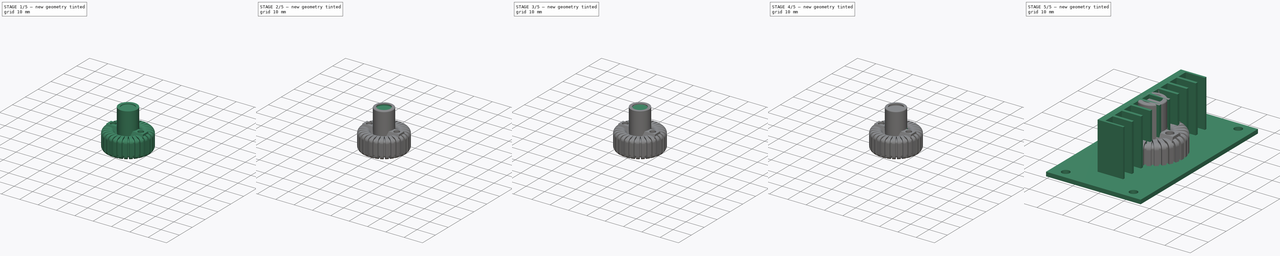
[diagram: build sequence overview — one tinted view per stage of 5, left to right]
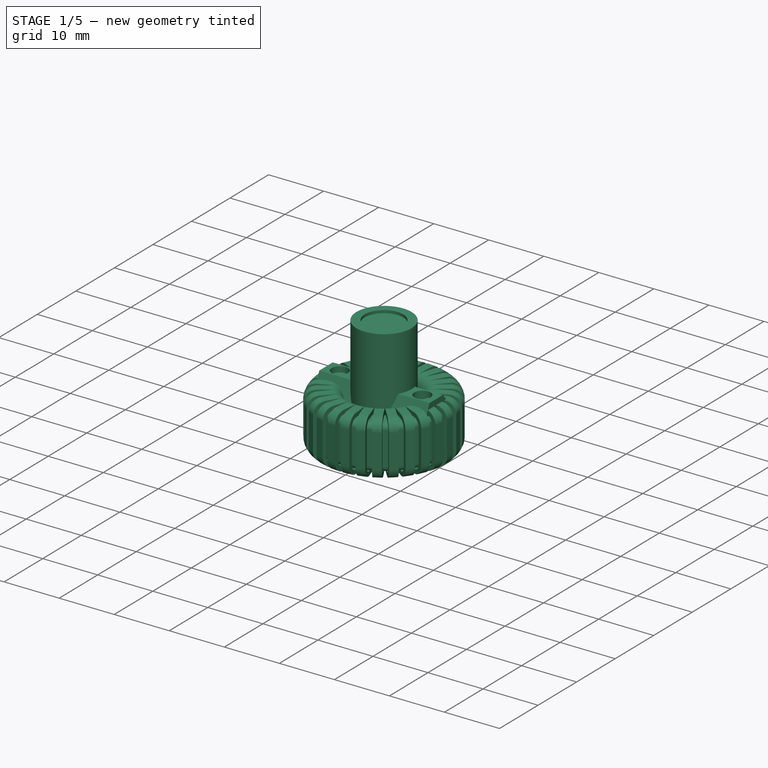
[diagram: stage 1 of 5 — iso view after this stage's code; geometry added in this stage tinted green]
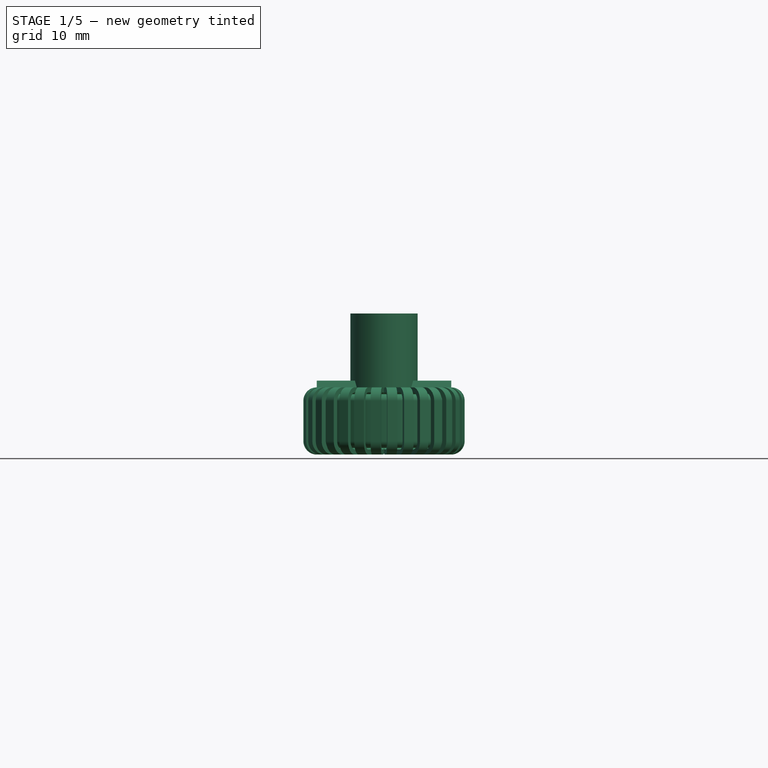
[diagram: stage 1 of 5 — front view after this stage's code; geometry added in this stage tinted green]
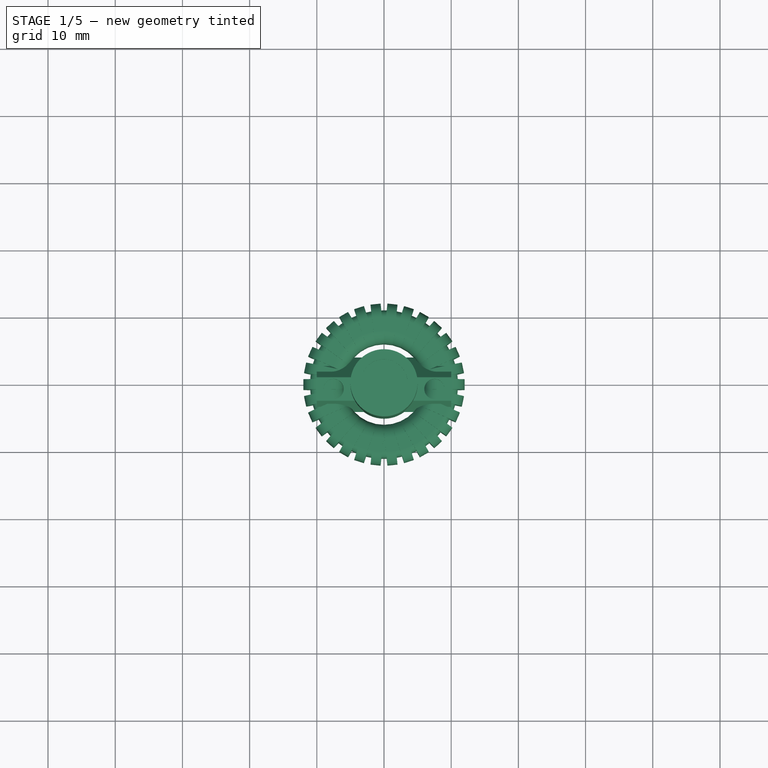
[diagram: stage 1 of 5 — top view after this stage's code; geometry added in this stage tinted green]
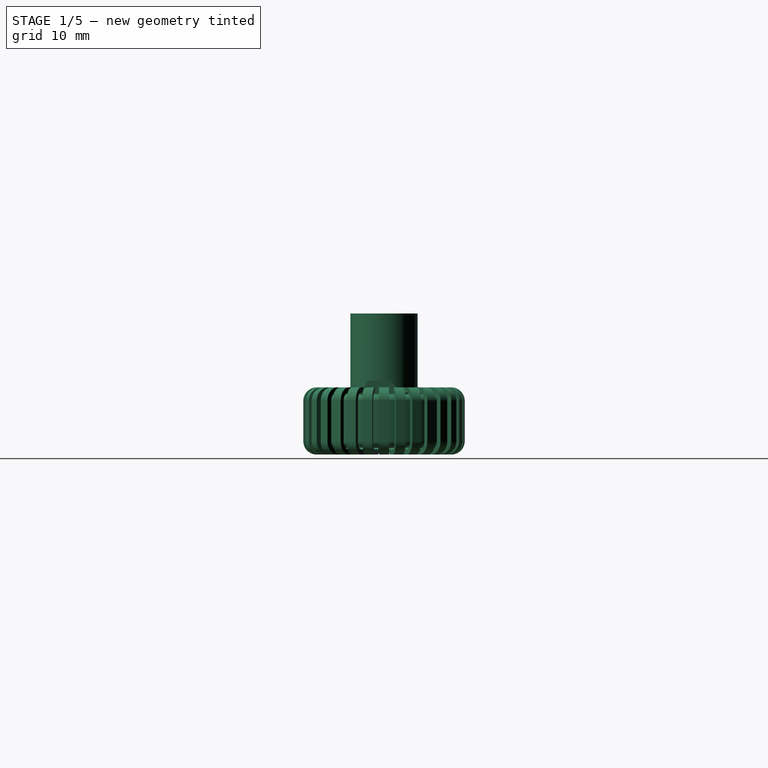
[diagram: stage 1 of 5 — right view after this stage's code; geometry added in this stage tinted green]
FCSTD DOCUMENT  (FreeCAD 0.18R4 (GitTag))
Label: XL4016_DCDC_Converter
License: CreativeCommons Attribution-NonCommercial
LicenseURL: http://creativecommons.org/licenses/by-nc/4.0/
objects: Sketcher::SketchObject×44, PartDesign::Pad×22, PartDesign::Pocket×22, PartDesign::Body×18, App::Part×9, PartDesign::Fillet×5, PartDesign::PolarPattern×1
note: 156 computed .brp shape members not serialized (recipe doc carries the construction recipe); baked Part::Feature solids carry a one-line shape summary decoded from their .brp

FEATURE [PartDesign::Body] Body011  label="Capacitor Shell002"
  Group = -> [Sketch028,Pad016,Sketch029,Pocket013,Sketch032,Pocket015,Fillet002]
  Origin = -> Origin018
  Tip = -> Fillet002
FEATURE [App::Part] Part005  label="Capacitor BR"
  Group = -> [Body011,Body012]
  Origin = -> Origin017
  Placement = pos=(8,-17.5,1.65) rot=(0,0,1;0rad)
FEATURE [Sketcher::SketchObject] Sketch033
  MapMode = 5
  Support = -> [XY_Plane020]
  sketch-geometry (1):
    g0: Circle CenterX=0 CenterY=0 CenterZ=0 NormalX=0 NormalY=0 NormalZ=1 AngleXU=0 Radius=5
  constraints (2):
    c: Coincident(g0,g-1)
    c: Radius(g0) = 5
FEATURE [PartDesign::Pad] Pad018  label="Capacitor Shell Baseblock003"
  Length = 20
  Length2 = 100
  Profile = -> Sketch033
  Type = 0
FEATURE [Sketcher::SketchObject] Sketch034
  MapMode = 5
  Placement = pos=(0,0,20) rot=(0,0,1;0rad)
  Support = -> [Pad018]
  sketch-geometry (1):
    g0: Circle CenterX=0 CenterY=0 CenterZ=0 NormalX=0 NormalY=0 NormalZ=1 AngleXU=0 Radius=3.5
  constraints (2):
    c: Coincident(g0,g-1)
    c: Radius(g0) = 3.5
FEATURE [PartDesign::Pocket] Pocket016  label="Top Hole003"
  BaseFeature = -> Pad018
  Length = 0.5
  Length2 = 100
  Profile = -> Sketch034
  Type = 0
FEATURE [PartDesign::Body] Body013  label="Capacitor Shell003"
  Group = -> [Sketch033,Pad018,Sketch034,Pocket016,Sketch037,Pocket018,Fillet003]
  Origin = -> Origin021
  Tip = -> Fillet003
FEATURE [App::Part] Part006  label="Capacitor TR"
  Group = -> [Body013,Body014]
  Origin = -> Origin020
  Placement = pos=(5.5,-7,1.65) rot=(0,0,1;0rad)
FEATURE [Sketcher::SketchObject] Sketch038
  MapMode = 5
  Support = -> [XY_Plane023]
  sketch-geometry (2):
    g0: Circle CenterX=0 CenterY=0 CenterZ=0 NormalX=0 NormalY=0 NormalZ=1 AngleXU=0 Radius=7
    g1: Circle CenterX=0 CenterY=0 CenterZ=0 NormalX=0 NormalY=0 NormalZ=1 AngleXU=0 Radius=11
  constraints (4):
    c: Coincident(g0,g-1)
    c: Coincident(g1,g0)
    c: Radius(g1) = 11
    c: Radius(g0) = 7
FEATURE [PartDesign::Pad] Pad019  label="Core"
  Length = 8
  Length2 = 100
  Profile = -> Sketch038
  Type = 0
FEATURE [Sketcher::SketchObject] Sketch039
  MapMode = 5
  Placement = pos=(0,0,0) rot=(1,0,0;1.5708rad)
  Support = -> [XZ_Plane024]
  sketch-geometry (16):
    g0: LineSegment StartX=8 StartY=9 StartZ=0 EndX=10 EndY=9 EndZ=0
    g1: LineSegment StartX=12 StartY=7 StartZ=0 EndX=12 EndY=1 EndZ=0
    g2: LineSegment StartX=10 StartY=-1 StartZ=0 EndX=8 EndY=-1 EndZ=0
    g3: LineSegment StartX=6 StartY=1 StartZ=0 EndX=6 EndY=7 EndZ=0
    g4: ArcOfCircle CenterX=10 CenterY=7 CenterZ=0 NormalX=0 NormalY=0 NormalZ=1 AngleXU=0 Radius=2 StartAngle=1e-16 EndAngle=1.5708
    g5: ArcOfCircle CenterX=10 CenterY=1 CenterZ=0 NormalX=0 NormalY=0 NormalZ=1 AngleXU=0 Radius=2 StartAngle=4.71239 EndAngle=6.28319
    g6: ArcOfCircle CenterX=8 CenterY=1 CenterZ=0 NormalX=0 NormalY=0 NormalZ=1 AngleXU=0 Radius=2 StartAngle=3.14159 EndAngle=4.71239
    g7: ArcOfCircle CenterX=8 CenterY=7 CenterZ=0 NormalX=0 NormalY=0 NormalZ=1 AngleXU=0 Radius=2 StartAngle=1.5708 EndAngle=3.14159
    g8: LineSegment StartX=8 StartY=-0.25 StartZ=0 EndX=10 EndY=-0.25 EndZ=0
    g9: LineSegment StartX=11.25 StartY=1 StartZ=0 EndX=11.25 EndY=7 EndZ=0
    g10: LineSegment StartX=10 StartY=8.25 StartZ=0 EndX=8 EndY=8.25 EndZ=0
    g11: LineSegment StartX=6.75 StartY=7 StartZ=0 EndX=6.75 EndY=1 EndZ=0
    g12: ArcOfCircle CenterX=8 CenterY=7 CenterZ=0 NormalX=0 NormalY=0 NormalZ=1 AngleXU=0 Radius=1.25 StartAngle=1.5708 EndAngle=3.14159
    g13: ArcOfCircle CenterX=10 CenterY=7 CenterZ=0 NormalX=0 NormalY=0 NormalZ=1 AngleXU=0 Radius=1.25 StartAngle=0 EndAngle=1.5708
    g14: ArcOfCircle CenterX=10 CenterY=1 CenterZ=0 NormalX=0 NormalY=0 NormalZ=1 AngleXU=0 Radius=1.25 StartAngle=4.71239 EndAngle=6.28319
    g15: ArcOfCircle CenterX=8 CenterY=1 CenterZ=0 NormalX=0 NormalY=0 NormalZ=1 AngleXU=0 Radius=1.25 StartAngle=3.14159 EndAngle=4.71239
  constraints (40):
    c: Horizontal(g0)
    c: Horizontal(g2)
    c: Vertical(g1)
    c: Vertical(g3)
    c: Tangent(g0,g4) = 1.5708
    c: Tangent(g1,g4) = 1.5708
    c: Tangent(g1,g5) = 1.5708
    c: Tangent(g2,g5) = 1.5708
    c: Tangent(g2,g6) = 1.5708
    c: Tangent(g3,g6) = 1.5708
    c: Tangent(g3,g7) = 1.5708
    c: Tangent(g0,g7) = 1.5708
    c: Horizontal(g8)
    c: Horizontal(g10)
    c: Vertical(g9)
    c: Vertical(g11)
    c: Tangent(g11,g12) = -1.5708
    c: Tangent(g10,g12) = -1.5708
    c: Tangent(g10,g13) = -1.5708
    c: Tangent(g9,g13) = -1.5708
    c: Tangent(g9,g14) = -1.5708
    c: Tangent(g8,g14) = -1.5708
    c: Tangent(g8,g15) = -1.5708
    c: Tangent(g11,g15) = -1.5708
    c: Equal(g12,g13)
    c: Equal(g13,g14)
    c: Equal(g14,g15)
    c: Radius(g12) = 1.25
    c: DistanceY(g8,g10) = 8.5
    c: DistanceX(g11,g9) = 4.5
    c: DistanceY(g2,g0) = 10
    c: DistanceX(g3,g1) = 6
    c: DistanceY(g2,g8) = 0.75
    c: DistanceX(g9,g1) = 0.75
    c: DistanceX(g-1,g8) = 8
    c: DistanceY(g8,g-1) = 0.25
    c: Equal(g6,g5)
    c: Equal(g5,g4)
    c: Equal(g4,g7)
    c: Radius(g4) = 2
FEATURE [PartDesign::Pad] Pad020  label="Copperturn"
  Length = 0.75
  Length2 = 0.75
  Placement = pos=(0,0,0) rot=(1,0,0;1.5708rad)
  Profile = -> Sketch039
  Type = 4
FEATURE [PartDesign::Fillet] Fillet004
  Base = -> Pad019 [Face4,Face3]
  BaseFeature = -> Pad019
  Radius = 1
FEATURE [PartDesign::Body] Body015  label="Iron Core"
  Group = -> [Sketch038,Pad019,Fillet004]
  Origin = -> Origin023
  Tip = -> Fillet004
FEATURE [PartDesign::PolarPattern] PolarPattern
  Angle = 360
  Axis = -> Z_Axis024
  BaseFeature = -> Pad020
  Occurrences = 30
  Originals = -> [Pad020]
  Placement = pos=(0,0,0) rot=(1,0,0;1.5708rad)
FEATURE [PartDesign::Body] Body016  label="Copperring"
  Group = -> [Sketch039,Pad020,PolarPattern]
  Origin = -> Origin024
  Tip = -> PolarPattern
FEATURE [App::Part] Part007  label="Copperring Core"
  Group = -> [Body015,Body016]
  Origin = -> Origin022
  Placement = pos=(0,15,3.3) rot=(0,0,1;0rad)
FEATURE [Sketcher::SketchObject] Sketch040
  MapMode = 5
  Support = -> [XY_Plane026]
  sketch-geometry (4):
    g0: LineSegment StartX=-10 StartY=4 StartZ=0 EndX=10 EndY=4 EndZ=0
    g1: LineSegment StartX=10 StartY=4 StartZ=0 EndX=10 EndY=-4 EndZ=0
    g2: LineSegment StartX=10 StartY=-4 StartZ=0 EndX=-10 EndY=-4 EndZ=0
    g3: LineSegment StartX=-10 StartY=-4 StartZ=0 EndX=-10 EndY=4 EndZ=0
  constraints (10):
    c: Coincident(g0,g1)
    c: Coincident(g1,g2)
    c: Coincident(g2,g3)
    c: Coincident(g3,g0)
    c: Horizontal(g2)
    c: Vertical(g3)
    c: DistanceX(g0,g0) = 20
    c: DistanceY(g1,g1) = 8
    c: Symmetric(g0,g0,g-2)
    c: Symmetric(g1,g0,g-1)
FEATURE [PartDesign::Pad] Pad021
  Length = 10
  Length2 = 100
  Profile = -> Sketch040
  Type = 0
FEATURE [Sketcher::SketchObject] Sketch041
  MapMode = 5
  Placement = pos=(10,0,0) rot=(0.57735,0.57735,0.57735;2.0944rad)
  Support = -> [Pad021]
  sketch-geometry (8):
    g0: LineSegment StartX=-4 StartY=6.5 StartZ=0 EndX=-2.5 EndY=10 EndZ=0
    g1: LineSegment StartX=-2.5 StartY=10 StartZ=0 EndX=1 EndY=10 EndZ=0
    g2: LineSegment StartX=1 StartY=10 StartZ=0 EndX=4 EndY=6.5 EndZ=0
    g3: LineSegment StartX=5 StartY=11 StartZ=0 EndX=-5 EndY=11 EndZ=0
    g4: LineSegment StartX=-5 StartY=11 StartZ=0 EndX=-5 EndY=6.5 EndZ=0
    g5: LineSegment StartX=-5 StartY=6.5 StartZ=0 EndX=-4 EndY=6.5 EndZ=0
    g6: LineSegment StartX=4 StartY=6.5 StartZ=0 EndX=5 EndY=6.5 EndZ=0
    g7: LineSegment StartX=5 StartY=6.5 StartZ=0 EndX=5 EndY=11 EndZ=0
  constraints (22):
    c: Coincident(g0,g1)
    c: Horizontal(g1)
    c: Coincident(g1,g2)
    c: Coincident(g3,g4)
    c: Vertical(g4)
    c: Coincident(g4,g5)
    c: Coincident(g5,g0)
    c: Coincident(g2,g6)
    c: Horizontal(g6)
    c: Coincident(g6,g7)
    c: Vertical(g7)
    c: Coincident(g3,g7)
    c: Horizontal(g5)
    c: DistanceX(g0,g-1) = 2.5
    c: DistanceX(g-1,g1) = 1
    c: DistanceY(g0,g0) = 3.5
    c: Symmetric(g0,g2,g-2)
    c: DistanceX(g0,g2) = 8
    c: DistanceX(g3,g3) = 10
    c: DistanceY(g7,g7) = 4.5
    c: DistanceY(g-1,g1) = 10
    c: Symmetric(g3,g3,g-2)
FEATURE [PartDesign::Pocket] Pocket019
  BaseFeature = -> Pad021
  Length = 20
  Length2 = 100
  Profile = -> Sketch041
  Type = 0
FEATURE [Sketcher::SketchObject] Sketch042
  MapMode = 5
  Placement = pos=(0,0,10) rot=(0,0,1;0rad)
  Support = -> [Pocket019]
  sketch-geometry (4):
    g0: Circle CenterX=-7.5 CenterY=-0.75 CenterZ=0 NormalX=0 NormalY=0 NormalZ=1 AngleXU=0 Radius=1.5
    g1: Circle CenterX=-2.5 CenterY=-0.75 CenterZ=0 NormalX=0 NormalY=0 NormalZ=1 AngleXU=0 Radius=1.5
    g2: Circle CenterX=2.5 CenterY=-0.75 CenterZ=0 NormalX=0 NormalY=0 NormalZ=1 AngleXU=0 Radius=1.5
    g3: Circle CenterX=7.5 CenterY=-0.75 CenterZ=0 NormalX=0 NormalY=0 NormalZ=1 AngleXU=0 Radius=1.5
  constraints (10):
    c: Horizontal(g0,g1)
    c: Radius(g0) = 1.5
    c: Equal(g0,g1)
    c: Equal(g0,g2)
    c: Equal(g0,g3)
    c: DistanceX(g0,g1) = 5
    c: Symmetric(g1,g2,g-2)
    c: Symmetric(g0,g3,g-2)
    c: DistanceX(g1,g2) = 5
    c: DistanceY(g1,g-1) = 0.75
FEATURE [PartDesign::Pocket] Pocket020
  BaseFeature = -> Pocket019
  Length = 4
  Length2 = 100
  Profile = -> Sketch042
  Type = 0
FEATURE [Sketcher::SketchObject] Sketch043
  MapMode = 5
  Placement = pos=(0,-4,0) rot=(1,0,0;1.5708rad)
  Support = -> [Pocket020]
  sketch-geometry (16):
    g0: LineSegment StartX=-9.5 StartY=1 StartZ=0 EndX=-5.5 EndY=1 EndZ=0
    g1: LineSegment StartX=-5.5 StartY=1 StartZ=0 EndX=-5.5 EndY=5.5 EndZ=0
    g2: LineSegment StartX=-5.5 StartY=5.5 StartZ=0 EndX=-9.5 EndY=5.5 EndZ=0
    g3: LineSegment StartX=-9.5 StartY=5.5 StartZ=0 EndX=-9.5 EndY=1 EndZ=0
    g4: LineSegment StartX=-4.5 StartY=1 StartZ=0 EndX=-0.5 EndY=1 EndZ=0
    g5: LineSegment StartX=-0.5 StartY=1 StartZ=0 EndX=-0.5 EndY=5.5 EndZ=0
    g6: LineSegment StartX=-0.5 StartY=5.5 StartZ=0 EndX=-4.5 EndY=5.5 EndZ=0
    g7: LineSegment StartX=-4.5 StartY=5.5 StartZ=0 EndX=-4.5 EndY=1 EndZ=0
    g8: LineSegment StartX=0.5 StartY=1 StartZ=0 EndX=4.5 EndY=1 EndZ=0
    g9: LineSegment StartX=4.5 StartY=1 StartZ=0 EndX=4.5 EndY=5.5 EndZ=0
    g10: LineSegment StartX=4.5 StartY=5.5 StartZ=0 EndX=0.5 EndY=5.5 EndZ=0
    g11: LineSegment StartX=0.5 StartY=5.5 StartZ=0 EndX=0.5 EndY=1 EndZ=0
    g12: LineSegment StartX=5.5 StartY=1 StartZ=0 EndX=9.5 EndY=1 EndZ=0
    g13: LineSegment StartX=9.5 StartY=1 StartZ=0 EndX=9.5 EndY=5.5 EndZ=0
    g14: LineSegment StartX=9.5 StartY=5.5 StartZ=0 EndX=5.5 EndY=5.5 EndZ=0
    g15: LineSegment StartX=5.5 StartY=5.5 StartZ=0 EndX=5.5 EndY=1 EndZ=0
  constraints (46):
    c: Coincident(g0,g1)
    c: Coincident(g1,g2)
    c: Coincident(g2,g3)
    c: Coincident(g3,g0)
    c: Horizontal(g0)
    c: Horizontal(g2)
    c: Vertical(g1)
    c: Vertical(g3)
    c: Coincident(g4,g5)
    c: Coincident(g5,g6)
    c: Coincident(g6,g7)
    c: Coincident(g7,g4)
    c: Horizontal(g4)
    c: Horizontal(g6)
    c: Vertical(g5)
    c: Vertical(g7)
    c: Coincident(g8,g9)
    c: Coincident(g9,g10)
    c: Coincident(g10,g11)
    c: Coincident(g11,g8)
    c: Horizontal(g8)
    c: Horizontal(g10)
    c: Vertical(g9)
    c: Vertical(g11)
    c: Coincident(g12,g13)
    c: Coincident(g13,g14)
    c: Coincident(g14,g15)
    c: Coincident(g15,g12)
    c: Horizontal(g12)
    c: Horizontal(g14)
    c: Vertical(g13)
    c: Vertical(g15)
    c: Horizontal(g1,g6)
    c: Horizontal(g0,g4)
    c: Horizontal(g4,g8)
    c: Horizontal(g8,g12)
    c: Symmetric(g5,g10,g-2)
    c: Symmetric(g1,g14,g-2)
    c: DistanceY(g-1,g4) = 1
    c: DistanceY(g-1,g5) = 5.5
    c: DistanceX(g2,g2) = 4
    c: Equal(g6,g2)
    c: Equal(g2,g10)
    c: Equal(g10,g14)
    c: DistanceX(g5,g10) = 1
    c: DistanceX(g1,g6) = 1
FEATURE [PartDesign::Pocket] Pocket021
  BaseFeature = -> Pocket020
  Length = 5
  Length2 = 100
  Profile = -> Sketch043
  Type = 0
FEATURE [PartDesign::Body] Body017  label="Terminal Block Shell"
  Group = -> [Sketch040,Pad021,Sketch041,Pocket019,Sketch042,Pocket020,Sketch043,Pocket021]
  Origin = -> Origin026
  Tip = -> Pocket021
FEATURE [App::Part] Part008  label="Terminal Block"
  Group = -> [Body017]
  Origin = -> Origin025
  Placement = pos=(0,-28,1.65) rot=(0,0,1;0rad)
FEATURE [App::Part] Part  label="XL4016 Buck Converter"
  Group = -> [Body,Body001,Body002,Part002,Part001,Part003,Part004,Part005,Part006,Part007,Part008]
  Origin = -> Origin
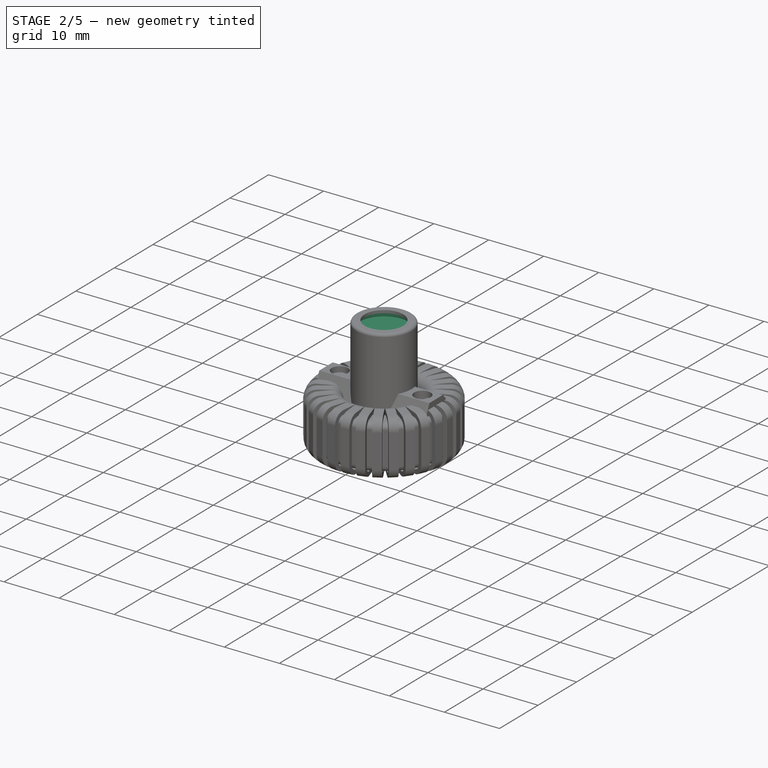
[diagram: stage 2 of 5 — iso view after this stage's code; geometry added in this stage tinted green]
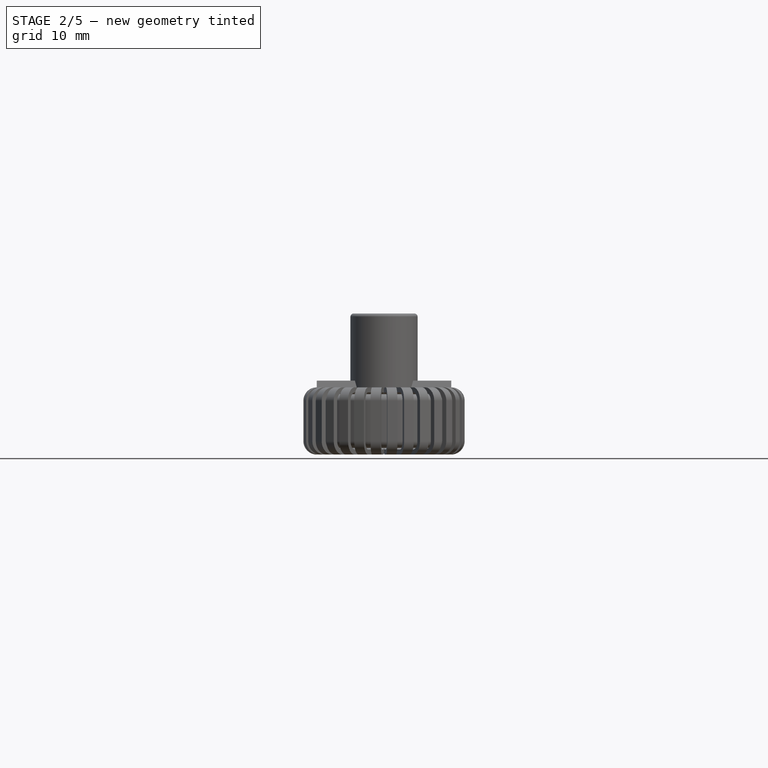
[diagram: stage 2 of 5 — front view after this stage's code; geometry added in this stage tinted green]
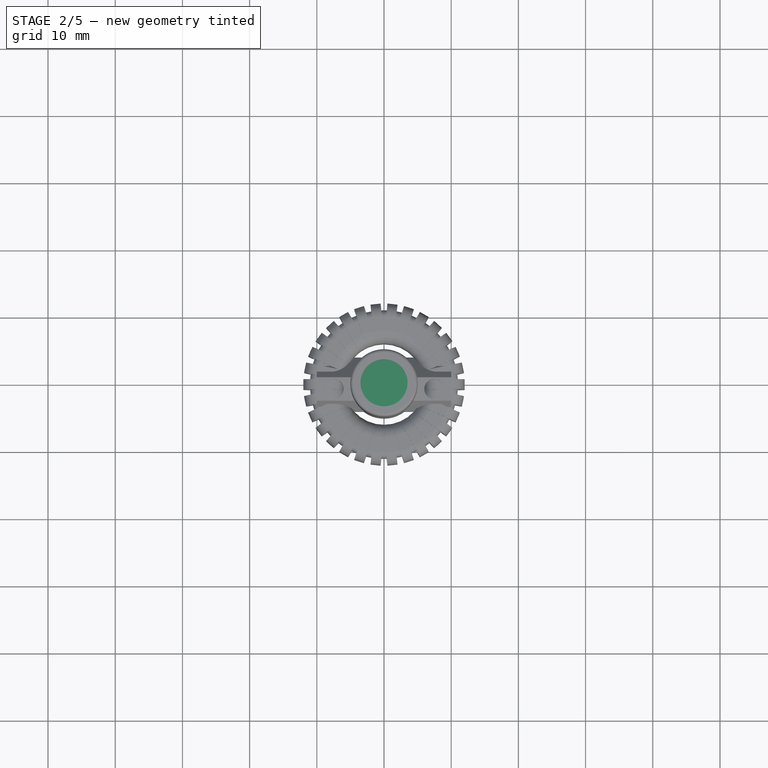
[diagram: stage 2 of 5 — top view after this stage's code; geometry added in this stage tinted green]
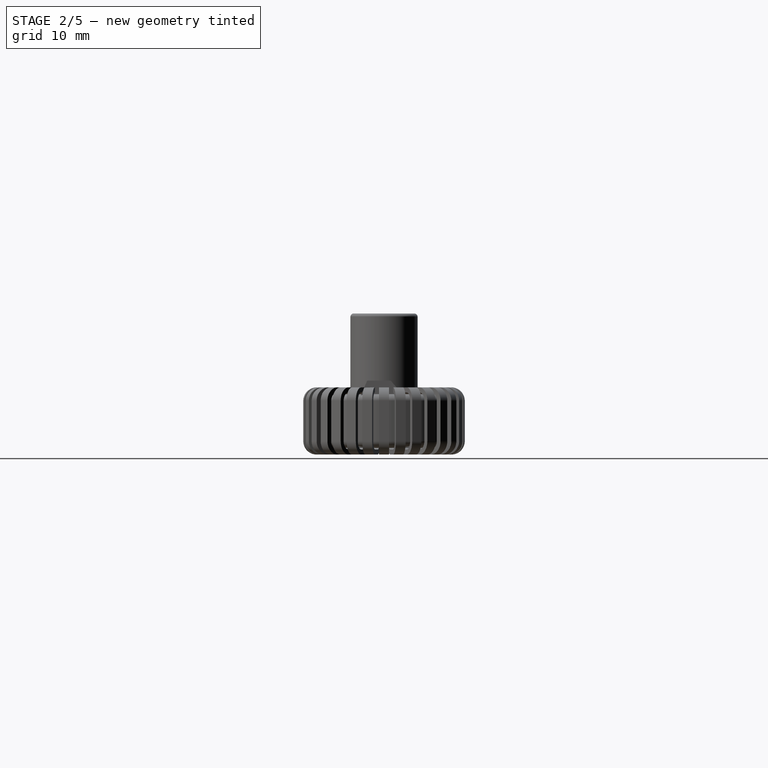
[diagram: stage 2 of 5 — right view after this stage's code; geometry added in this stage tinted green]
FEATURE [PartDesign::Body] Body009  label="Capacitor Shell001"
  Group = -> [Sketch023,Pad014,Sketch024,Pocket010,Sketch027,Pocket012,Fillet001]
  Origin = -> Origin015
  Tip = -> Fillet001
FEATURE [App::Part] Part004  label="Capacitor TL"
  Group = -> [Body009,Body010]
  Origin = -> Origin014
  Placement = pos=(-5.5,-7,1.65) rot=(0,0,1;0rad)
FEATURE [Sketcher::SketchObject] Sketch028
  MapMode = 5
  Support = -> [XY_Plane017]
  sketch-geometry (1):
    g0: Circle CenterX=0 CenterY=0 CenterZ=0 NormalX=0 NormalY=0 NormalZ=1 AngleXU=0 Radius=5
  constraints (2):
    c: Coincident(g0,g-1)
    c: Radius(g0) = 5
FEATURE [PartDesign::Pad] Pad016  label="Capacitor Shell Baseblock002"
  Length = 20
  Length2 = 100
  Profile = -> Sketch028
  Type = 0
FEATURE [Sketcher::SketchObject] Sketch029
  MapMode = 5
  Placement = pos=(0,0,20) rot=(0,0,1;0rad)
  Support = -> [Pad016]
  sketch-geometry (1):
    g0: Circle CenterX=0 CenterY=0 CenterZ=0 NormalX=0 NormalY=0 NormalZ=1 AngleXU=0 Radius=3.5
  constraints (2):
    c: Coincident(g0,g-1)
    c: Radius(g0) = 3.5
FEATURE [PartDesign::Pocket] Pocket013  label="Top Hole002"
  BaseFeature = -> Pad016
  Length = 0.5
  Length2 = 100
  Profile = -> Sketch029
  Type = 0
FEATURE [Sketcher::SketchObject] Sketch030
  MapMode = 5
  Support = -> [XY_Plane018]
  sketch-geometry (1):
    g0: Circle CenterX=0 CenterY=0 CenterZ=0 NormalX=0 NormalY=0 NormalZ=1 AngleXU=0 Radius=4.25
  constraints (2):
    c: Coincident(g0,g-1)
    c: Radius(g0) = 4.25
FEATURE [PartDesign::Pad] Pad015  label="Capacitor Cap Baseblock002"
  Length = 0.5
  Length2 = 100
  Profile = -> Sketch030
  Type = 0
FEATURE [Sketcher::SketchObject] Sketch031
  MapMode = 5
  Placement = pos=(0,0,0.5) rot=(0,0,1;0rad)
  Support = -> [Pad015]
  sketch-geometry (12):
    g0: LineSegment StartX=-0.25 StartY=0.25 StartZ=0 EndX=-0.25 EndY=4.5 EndZ=0
    g1: LineSegment StartX=-0.25 StartY=4.5 StartZ=0 EndX=0.25 EndY=4.5 EndZ=0
    g2: LineSegment StartX=0.25 StartY=4.5 StartZ=0 EndX=0.25 EndY=0.25 EndZ=0
    g3: LineSegment StartX=0.25 StartY=0.25 StartZ=0 EndX=4.5 EndY=0.25 EndZ=0
    g4: LineSegment StartX=4.5 StartY=0.25 StartZ=0 EndX=4.5 EndY=-0.25 EndZ=0
    g5: LineSegment StartX=4.5 StartY=-0.25 StartZ=0 EndX=0.25 EndY=-0.25 EndZ=0
    g6: LineSegment StartX=0.25 StartY=-0.25 StartZ=0 EndX=0.25 EndY=-4.5 EndZ=0
    g7: LineSegment StartX=0.25 StartY=-4.5 StartZ=0 EndX=-0.25 EndY=-4.5 EndZ=0
    g8: LineSegment StartX=-0.25 StartY=-4.5 StartZ=0 EndX=-0.25 EndY=-0.25 EndZ=0
    g9: LineSegment StartX=-0.25 StartY=-0.25 StartZ=0 EndX=-4.5 EndY=-0.25 EndZ=0
    g10: LineSegment StartX=-4.5 StartY=-0.25 StartZ=0 EndX=-4.5 EndY=0.25 EndZ=0
    g11: LineSegment StartX=-4.5 StartY=0.25 StartZ=0 EndX=-0.25 EndY=0.25 EndZ=0
  constraints (32):
    c: Vertical(g0)
    c: Coincident(g0,g1)
    c: Coincident(g1,g2)
    c: Vertical(g2)
    c: Coincident(g2,g3)
    c: Horizontal(g3)
    c: Coincident(g3,g4)
    c: Coincident(g4,g5)
    c: Horizontal(g5)
    c: Coincident(g5,g6)
    c: Vertical(g6)
    c: Coincident(g6,g7)
    c: Horizontal(g7)
    c: Coincident(g7,g8)
    c: Vertical(g8)
    c: Coincident(g8,g9)
    c: Horizontal(g9)
    c: Coincident(g9,g10)
    c: Coincident(g10,g11)
    c: Coincident(g11,g0)
    c: Horizontal(g11)
    c: Vertical(g10)
    c: Horizontal(g8,g5)
    c: Vertical(g8,g0)
    c: Symmetric(g3,g4,g-1)
    c: Symmetric(g0,g1,g-2)
    c: Symmetric(g6,g1,g-1)
    c: Symmetric(g10,g3,g-2)
    c: Equal(g3,g2)
    c: Equal(g1,g4)
    c: DistanceX(g1,g1) = 0.5
    c: DistanceY(g6,g1) = 9
FEATURE [PartDesign::Pocket] Pocket014  label="Capacitor Cap Cross002"
  BaseFeature = -> Pad015
  Length = 0.2
  Length2 = 100
  Profile = -> Sketch031
  Type = 0
FEATURE [PartDesign::Body] Body012  label="Capacitor Cap002"
  Group = -> [Sketch030,Pad015,Sketch031,Pocket014]
  Origin = -> Origin016
  Placement = pos=(0,0,19) rot=(0,0,1;0rad)
  Tip = -> Pocket014
FEATURE [Sketcher::SketchObject] Sketch032
  MapMode = 5
  Placement = pos=(0,0,19.5) rot=(0,0,1;0rad)
  Support = -> [Pocket013]
  sketch-geometry (1):
    g0: Circle CenterX=0 CenterY=0 CenterZ=0 NormalX=0 NormalY=0 NormalZ=1 AngleXU=0 Radius=4.5
  constraints (2):
    c: Coincident(g0,g-1)
    c: Radius(g0) = 4.5
FEATURE [PartDesign::Pocket] Pocket015  label="Top Hole widening002"
  BaseFeature = -> Pocket013
  Length = 1
  Length2 = 100
  Profile = -> Sketch032
  Type = 0
FEATURE [PartDesign::Fillet] Fillet002  label="Top Edge rounded002"
  Base = -> Pocket015 [Edge3]
  BaseFeature = -> Pocket015
  Radius = 0.5
FEATURE [Sketcher::SketchObject] Sketch035
  MapMode = 5
  Support = -> [XY_Plane021]
  sketch-geometry (1):
    g0: Circle CenterX=0 CenterY=0 CenterZ=0 NormalX=0 NormalY=0 NormalZ=1 AngleXU=0 Radius=4.25
  constraints (2):
    c: Coincident(g0,g-1)
    c: Radius(g0) = 4.25
FEATURE [PartDesign::Pad] Pad017  label="Capacitor Cap Baseblock003"
  Length = 0.5
  Length2 = 100
  Profile = -> Sketch035
  Type = 0
FEATURE [Sketcher::SketchObject] Sketch036
  MapMode = 5
  Placement = pos=(0,0,0.5) rot=(0,0,1;0rad)
  Support = -> [Pad017]
  sketch-geometry (12):
    g0: LineSegment StartX=-0.25 StartY=0.25 StartZ=0 EndX=-0.25 EndY=4.5 EndZ=0
    g1: LineSegment StartX=-0.25 StartY=4.5 StartZ=0 EndX=0.25 EndY=4.5 EndZ=0
    g2: LineSegment StartX=0.25 StartY=4.5 StartZ=0 EndX=0.25 EndY=0.25 EndZ=0
    g3: LineSegment StartX=0.25 StartY=0.25 StartZ=0 EndX=4.5 EndY=0.25 EndZ=0
    g4: LineSegment StartX=4.5 StartY=0.25 StartZ=0 EndX=4.5 EndY=-0.25 EndZ=0
    g5: LineSegment StartX=4.5 StartY=-0.25 StartZ=0 EndX=0.25 EndY=-0.25 EndZ=0
    g6: LineSegment StartX=0.25 StartY=-0.25 StartZ=0 EndX=0.25 EndY=-4.5 EndZ=0
    g7: LineSegment StartX=0.25 StartY=-4.5 StartZ=0 EndX=-0.25 EndY=-4.5 EndZ=0
    g8: LineSegment StartX=-0.25 StartY=-4.5 StartZ=0 EndX=-0.25 EndY=-0.25 EndZ=0
    g9: LineSegment StartX=-0.25 StartY=-0.25 StartZ=0 EndX=-4.5 EndY=-0.25 EndZ=0
    g10: LineSegment StartX=-4.5 StartY=-0.25 StartZ=0 EndX=-4.5 EndY=0.25 EndZ=0
    g11: LineSegment StartX=-4.5 StartY=0.25 StartZ=0 EndX=-0.25 EndY=0.25 EndZ=0
  constraints (32):
    c: Vertical(g0)
    c: Coincident(g0,g1)
    c: Coincident(g1,g2)
    c: Vertical(g2)
    c: Coincident(g2,g3)
    c: Horizontal(g3)
    c: Coincident(g3,g4)
    c: Coincident(g4,g5)
    c: Horizontal(g5)
    c: Coincident(g5,g6)
    c: Vertical(g6)
    c: Coincident(g6,g7)
    c: Horizontal(g7)
    c: Coincident(g7,g8)
    c: Vertical(g8)
    c: Coincident(g8,g9)
    c: Horizontal(g9)
    c: Coincident(g9,g10)
    c: Coincident(g10,g11)
    c: Coincident(g11,g0)
    c: Horizontal(g11)
    c: Vertical(g10)
    c: Horizontal(g8,g5)
    c: Vertical(g8,g0)
    c: Symmetric(g3,g4,g-1)
    c: Symmetric(g0,g1,g-2)
    c: Symmetric(g6,g1,g-1)
    c: Symmetric(g10,g3,g-2)
    c: Equal(g3,g2)
    c: Equal(g1,g4)
    c: DistanceX(g1,g1) = 0.5
    c: DistanceY(g6,g1) = 9
FEATURE [PartDesign::Pocket] Pocket017  label="Capacitor Cap Cross003"
  BaseFeature = -> Pad017
  Length = 0.2
  Length2 = 100
  Profile = -> Sketch036
  Type = 0
FEATURE [PartDesign::Body] Body014  label="Capacitor Cap003"
  Group = -> [Sketch035,Pad017,Sketch036,Pocket017]
  Origin = -> Origin019
  Placement = pos=(0,0,19) rot=(0,0,1;0rad)
  Tip = -> Pocket017
FEATURE [Sketcher::SketchObject] Sketch037
  MapMode = 5
  Placement = pos=(0,0,19.5) rot=(0,0,1;0rad)
  Support = -> [Pocket016]
  sketch-geometry (1):
    g0: Circle CenterX=0 CenterY=0 CenterZ=0 NormalX=0 NormalY=0 NormalZ=1 AngleXU=0 Radius=4.5
  constraints (2):
    c: Coincident(g0,g-1)
    c: Radius(g0) = 4.5
FEATURE [PartDesign::Pocket] Pocket018  label="Top Hole widening003"
  BaseFeature = -> Pocket016
  Length = 1
  Length2 = 100
  Profile = -> Sketch037
  Type = 0
FEATURE [PartDesign::Fillet] Fillet003  label="Top Edge rounded003"
  Base = -> Pocket018 [Edge3]
  BaseFeature = -> Pocket018
  Radius = 0.5
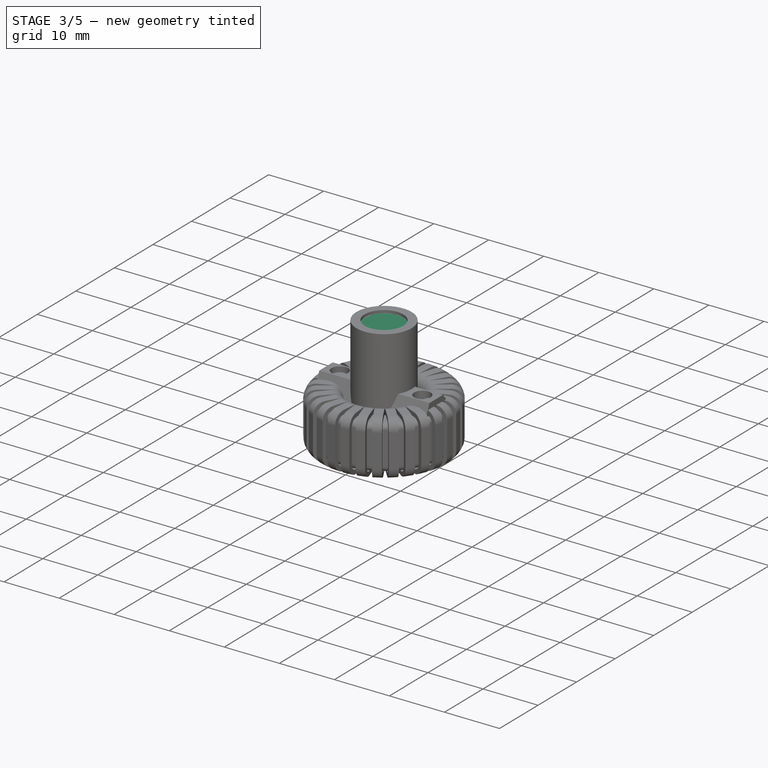
[diagram: stage 3 of 5 — iso view after this stage's code; geometry added in this stage tinted green]
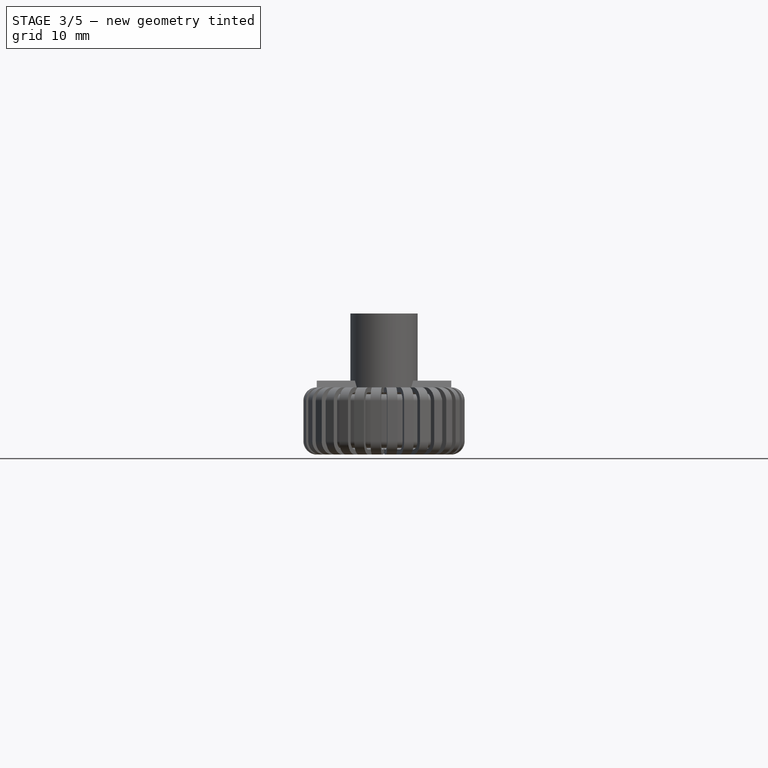
[diagram: stage 3 of 5 — front view after this stage's code; geometry added in this stage tinted green]
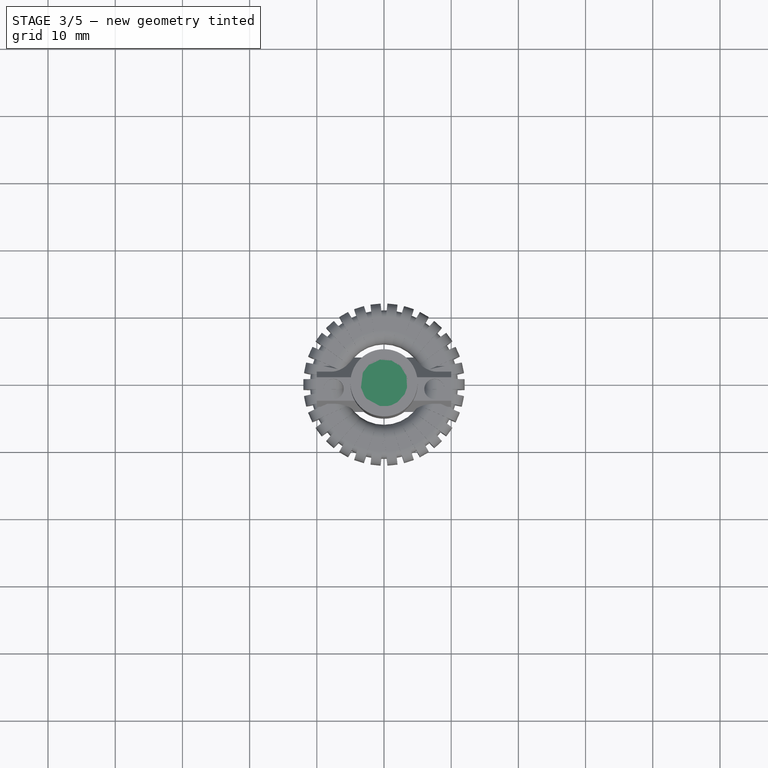
[diagram: stage 3 of 5 — top view after this stage's code; geometry added in this stage tinted green]
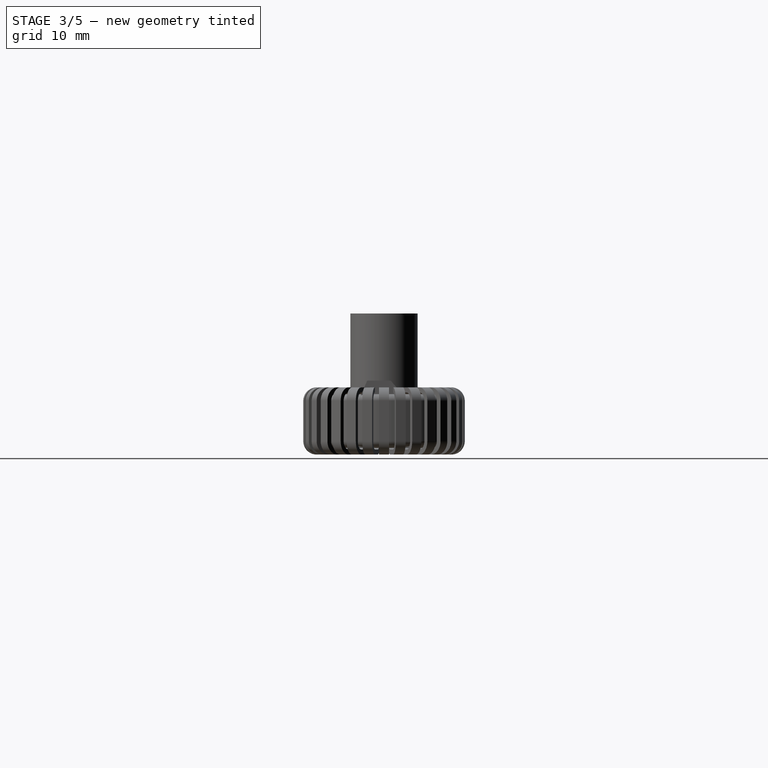
[diagram: stage 3 of 5 — right view after this stage's code; geometry added in this stage tinted green]
FEATURE [PartDesign::Body] Body005  label="Shell001"
  Group = -> [Sketch015,Pad007,Sketch014,Pad008,Sketch017,Pad010]
  Origin = -> Origin007
  Tip = -> Pad010
FEATURE [App::Part] Part002  label="3296 Potentiometer CV"
  Group = -> [Body005,Body006]
  Origin = -> Origin008
  Placement = pos=(5,30,2.15) rot=(0,0,1;0rad)
FEATURE [Sketcher::SketchObject] Sketch018
  MapMode = 5
  Support = -> [XY_Plane011]
  sketch-geometry (1):
    g0: Circle CenterX=0 CenterY=0 CenterZ=0 NormalX=0 NormalY=0 NormalZ=1 AngleXU=0 Radius=5
  constraints (2):
    c: Coincident(g0,g-1)
    c: Radius(g0) = 5
FEATURE [PartDesign::Pad] Pad011  label="Capacitor Shell Baseblock"
  Length = 20
  Length2 = 100
  Profile = -> Sketch018
  Type = 0
FEATURE [Sketcher::SketchObject] Sketch019
  MapMode = 5
  Placement = pos=(0,0,20) rot=(0,0,1;0rad)
  Support = -> [Pad011]
  sketch-geometry (1):
    g0: Circle CenterX=0 CenterY=0 CenterZ=0 NormalX=0 NormalY=0 NormalZ=1 AngleXU=0 Radius=3.5
  constraints (2):
    c: Coincident(g0,g-1)
    c: Radius(g0) = 3.5
FEATURE [PartDesign::Pocket] Pocket007  label="Top Hole"
  BaseFeature = -> Pad011
  Length = 0.5
  Length2 = 100
  Profile = -> Sketch019
  Type = 0
FEATURE [PartDesign::Body] Body007  label="Capacitor Shell"
  Group = -> [Sketch018,Pad011,Sketch019,Pocket007,Sketch020,Pocket008,Fillet]
  Origin = -> Origin011
  Tip = -> Fillet
FEATURE [Sketcher::SketchObject] Sketch021
  MapMode = 5
  Support = -> [XY_Plane012]
  sketch-geometry (1):
    g0: Circle CenterX=0 CenterY=0 CenterZ=0 NormalX=0 NormalY=0 NormalZ=1 AngleXU=0 Radius=4.25
  constraints (2):
    c: Coincident(g0,g-1)
    c: Radius(g0) = 4.25
FEATURE [PartDesign::Pad] Pad012  label="Capacitor Cap Baseblock"
  Length = 0.5
  Length2 = 100
  Profile = -> Sketch021
  Type = 0
FEATURE [Sketcher::SketchObject] Sketch022
  MapMode = 5
  Placement = pos=(0,0,0.5) rot=(0,0,1;0rad)
  Support = -> [Pad012]
  sketch-geometry (12):
    g0: LineSegment StartX=-0.25 StartY=0.25 StartZ=0 EndX=-0.25 EndY=4.5 EndZ=0
    g1: LineSegment StartX=-0.25 StartY=4.5 StartZ=0 EndX=0.25 EndY=4.5 EndZ=0
    g2: LineSegment StartX=0.25 StartY=4.5 StartZ=0 EndX=0.25 EndY=0.25 EndZ=0
    g3: LineSegment StartX=0.25 StartY=0.25 StartZ=0 EndX=4.5 EndY=0.25 EndZ=0
    g4: LineSegment StartX=4.5 StartY=0.25 StartZ=0 EndX=4.5 EndY=-0.25 EndZ=0
    g5: LineSegment StartX=4.5 StartY=-0.25 StartZ=0 EndX=0.25 EndY=-0.25 EndZ=0
    g6: LineSegment StartX=0.25 StartY=-0.25 StartZ=0 EndX=0.25 EndY=-4.5 EndZ=0
    g7: LineSegment StartX=0.25 StartY=-4.5 StartZ=0 EndX=-0.25 EndY=-4.5 EndZ=0
    g8: LineSegment StartX=-0.25 StartY=-4.5 StartZ=0 EndX=-0.25 EndY=-0.25 EndZ=0
    g9: LineSegment StartX=-0.25 StartY=-0.25 StartZ=0 EndX=-4.5 EndY=-0.25 EndZ=0
    g10: LineSegment StartX=-4.5 StartY=-0.25 StartZ=0 EndX=-4.5 EndY=0.25 EndZ=0
    g11: LineSegment StartX=-4.5 StartY=0.25 StartZ=0 EndX=-0.25 EndY=0.25 EndZ=0
  constraints (32):
    c: Vertical(g0)
    c: Coincident(g0,g1)
    c: Coincident(g1,g2)
    c: Vertical(g2)
    c: Coincident(g2,g3)
    c: Horizontal(g3)
    c: Coincident(g3,g4)
    c: Coincident(g4,g5)
    c: Horizontal(g5)
    c: Coincident(g5,g6)
    c: Vertical(g6)
    c: Coincident(g6,g7)
    c: Horizontal(g7)
    c: Coincident(g7,g8)
    c: Vertical(g8)
    c: Coincident(g8,g9)
    c: Horizontal(g9)
    c: Coincident(g9,g10)
    c: Coincident(g10,g11)
    c: Coincident(g11,g0)
    c: Horizontal(g11)
    c: Vertical(g10)
    c: Horizontal(g8,g5)
    c: Vertical(g8,g0)
    c: Symmetric(g3,g4,g-1)
    c: Symmetric(g0,g1,g-2)
    c: Symmetric(g6,g1,g-1)
    c: Symmetric(g10,g3,g-2)
    c: Equal(g3,g2)
    c: Equal(g1,g4)
    c: DistanceX(g1,g1) = 0.5
    c: DistanceY(g6,g1) = 9
FEATURE [PartDesign::Pocket] Pocket009  label="Capacitor Cap Cross"
  BaseFeature = -> Pad012
  Length = 0.2
  Length2 = 100
  Profile = -> Sketch022
  Type = 0
FEATURE [PartDesign::Body] Body008  label="Capacitor Cap"
  Group = -> [Sketch021,Pad012,Sketch022,Pocket009]
  Origin = -> Origin012
  Placement = pos=(0,0,19) rot=(0,0,1;0rad)
  Tip = -> Pocket009
FEATURE [App::Part] Part003  label="Capacitor BL"
  Group = -> [Body007,Body008]
  Origin = -> Origin010
  Placement = pos=(-8,-17.5,1.65) rot=(0,0,1;0rad)
FEATURE [Sketcher::SketchObject] Sketch023
  MapMode = 5
  Support = -> [XY_Plane014]
  sketch-geometry (1):
    g0: Circle CenterX=0 CenterY=0 CenterZ=0 NormalX=0 NormalY=0 NormalZ=1 AngleXU=0 Radius=5
  constraints (2):
    c: Coincident(g0,g-1)
    c: Radius(g0) = 5
FEATURE [PartDesign::Pad] Pad014  label="Capacitor Shell Baseblock001"
  Length = 20
  Length2 = 100
  Profile = -> Sketch023
  Type = 0
FEATURE [Sketcher::SketchObject] Sketch024
  MapMode = 5
  Placement = pos=(0,0,20) rot=(0,0,1;0rad)
  Support = -> [Pad014]
  sketch-geometry (1):
    g0: Circle CenterX=0 CenterY=0 CenterZ=0 NormalX=0 NormalY=0 NormalZ=1 AngleXU=0 Radius=3.5
  constraints (2):
    c: Coincident(g0,g-1)
    c: Radius(g0) = 3.5
FEATURE [PartDesign::Pocket] Pocket010  label="Top Hole001"
  BaseFeature = -> Pad014
  Length = 0.5
  Length2 = 100
  Profile = -> Sketch024
  Type = 0
FEATURE [Sketcher::SketchObject] Sketch025
  MapMode = 5
  Support = -> [XY_Plane015]
  sketch-geometry (1):
    g0: Circle CenterX=0 CenterY=0 CenterZ=0 NormalX=0 NormalY=0 NormalZ=1 AngleXU=0 Radius=4.25
  constraints (2):
    c: Coincident(g0,g-1)
    c: Radius(g0) = 4.25
FEATURE [PartDesign::Pad] Pad013  label="Capacitor Cap Baseblock001"
  Length = 0.5
  Length2 = 100
  Profile = -> Sketch025
  Type = 0
FEATURE [Sketcher::SketchObject] Sketch026
  MapMode = 5
  Placement = pos=(0,0,0.5) rot=(0,0,1;0rad)
  Support = -> [Pad013]
  sketch-geometry (12):
    g0: LineSegment StartX=-0.25 StartY=0.25 StartZ=0 EndX=-0.25 EndY=4.5 EndZ=0
    g1: LineSegment StartX=-0.25 StartY=4.5 StartZ=0 EndX=0.25 EndY=4.5 EndZ=0
    g2: LineSegment StartX=0.25 StartY=4.5 StartZ=0 EndX=0.25 EndY=0.25 EndZ=0
    g3: LineSegment StartX=0.25 StartY=0.25 StartZ=0 EndX=4.5 EndY=0.25 EndZ=0
    g4: LineSegment StartX=4.5 StartY=0.25 StartZ=0 EndX=4.5 EndY=-0.25 EndZ=0
    g5: LineSegment StartX=4.5 StartY=-0.25 StartZ=0 EndX=0.25 EndY=-0.25 EndZ=0
    g6: LineSegment StartX=0.25 StartY=-0.25 StartZ=0 EndX=0.25 EndY=-4.5 EndZ=0
    g7: LineSegment StartX=0.25 StartY=-4.5 StartZ=0 EndX=-0.25 EndY=-4.5 EndZ=0
    g8: LineSegment StartX=-0.25 StartY=-4.5 StartZ=0 EndX=-0.25 EndY=-0.25 EndZ=0
    g9: LineSegment StartX=-0.25 StartY=-0.25 StartZ=0 EndX=-4.5 EndY=-0.25 EndZ=0
    g10: LineSegment StartX=-4.5 StartY=-0.25 StartZ=0 EndX=-4.5 EndY=0.25 EndZ=0
    g11: LineSegment StartX=-4.5 StartY=0.25 StartZ=0 EndX=-0.25 EndY=0.25 EndZ=0
  constraints (32):
    c: Vertical(g0)
    c: Coincident(g0,g1)
    c: Coincident(g1,g2)
    c: Vertical(g2)
    c: Coincident(g2,g3)
    c: Horizontal(g3)
    c: Coincident(g3,g4)
    c: Coincident(g4,g5)
    c: Horizontal(g5)
    c: Coincident(g5,g6)
    c: Vertical(g6)
    c: Coincident(g6,g7)
    c: Horizontal(g7)
    c: Coincident(g7,g8)
    c: Vertical(g8)
    c: Coincident(g8,g9)
    c: Horizontal(g9)
    c: Coincident(g9,g10)
    c: Coincident(g10,g11)
    c: Coincident(g11,g0)
    c: Horizontal(g11)
    c: Vertical(g10)
    c: Horizontal(g8,g5)
    c: Vertical(g8,g0)
    c: Symmetric(g3,g4,g-1)
    c: Symmetric(g0,g1,g-2)
    c: Symmetric(g6,g1,g-1)
    c: Symmetric(g10,g3,g-2)
    c: Equal(g3,g2)
    c: Equal(g1,g4)
    c: DistanceX(g1,g1) = 0.5
    c: DistanceY(g6,g1) = 9
FEATURE [PartDesign::Pocket] Pocket011  label="Capacitor Cap Cross001"
  BaseFeature = -> Pad013
  Length = 0.2
  Length2 = 100
  Profile = -> Sketch026
  Type = 0
FEATURE [PartDesign::Body] Body010  label="Capacitor Cap001"
  Group = -> [Sketch025,Pad013,Sketch026,Pocket011]
  Origin = -> Origin013
  Placement = pos=(0,0,19) rot=(0,0,1;0rad)
  Tip = -> Pocket011
FEATURE [Sketcher::SketchObject] Sketch027
  MapMode = 5
  Placement = pos=(0,0,19.5) rot=(0,0,1;0rad)
  Support = -> [Pocket010]
  sketch-geometry (1):
    g0: Circle CenterX=0 CenterY=0 CenterZ=0 NormalX=0 NormalY=0 NormalZ=1 AngleXU=0 Radius=4.5
  constraints (2):
    c: Coincident(g0,g-1)
    c: Radius(g0) = 4.5
FEATURE [PartDesign::Pocket] Pocket012  label="Top Hole widening001"
  BaseFeature = -> Pocket010
  Length = 1
  Length2 = 100
  Profile = -> Sketch027
  Type = 0
FEATURE [PartDesign::Fillet] Fillet001  label="Top Edge rounded001"
  Base = -> Pocket012 [Edge3]
  BaseFeature = -> Pocket012
  Radius = 0.5
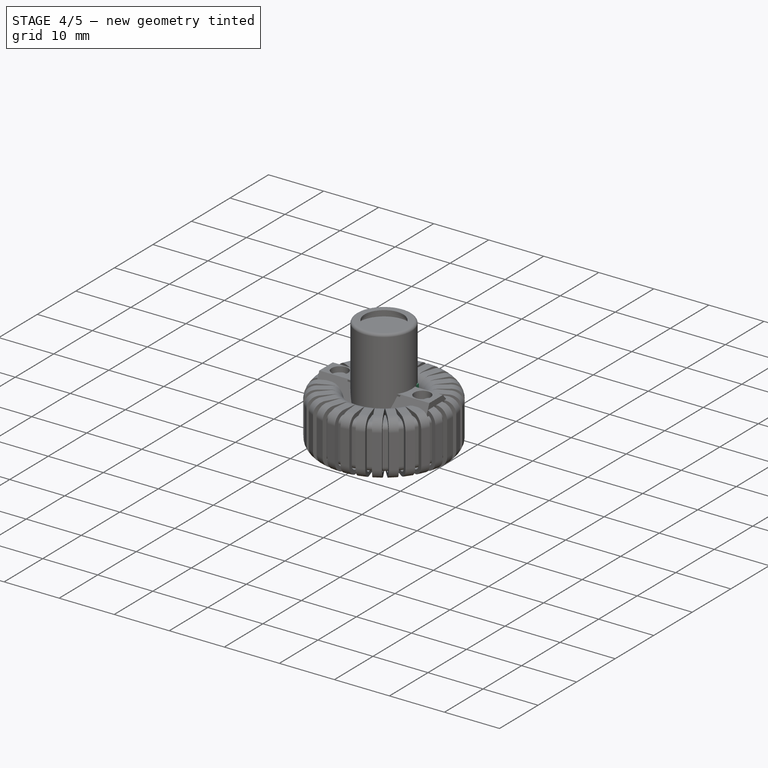
[diagram: stage 4 of 5 — iso view after this stage's code; geometry added in this stage tinted green]
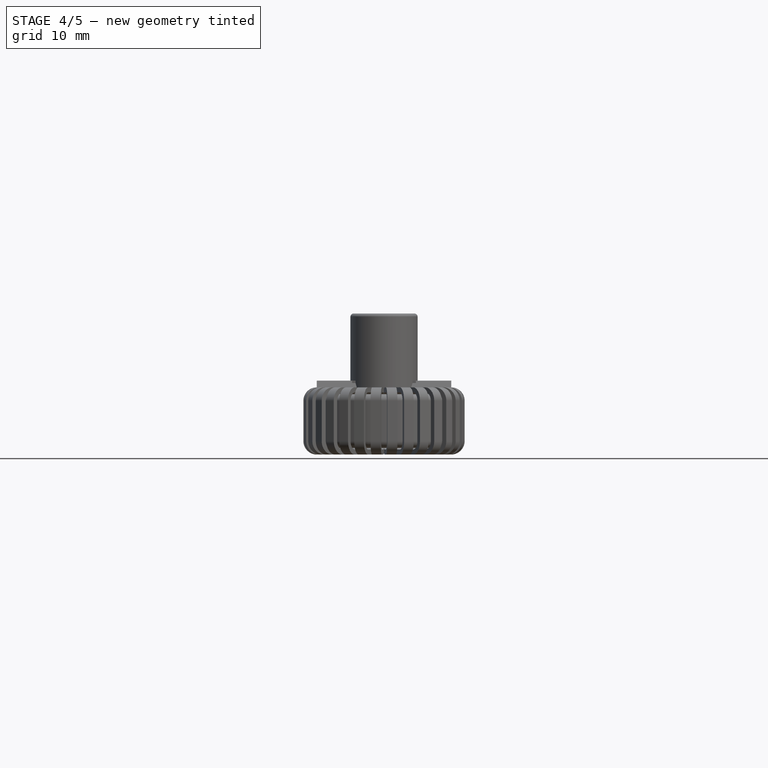
[diagram: stage 4 of 5 — front view after this stage's code; geometry added in this stage tinted green]
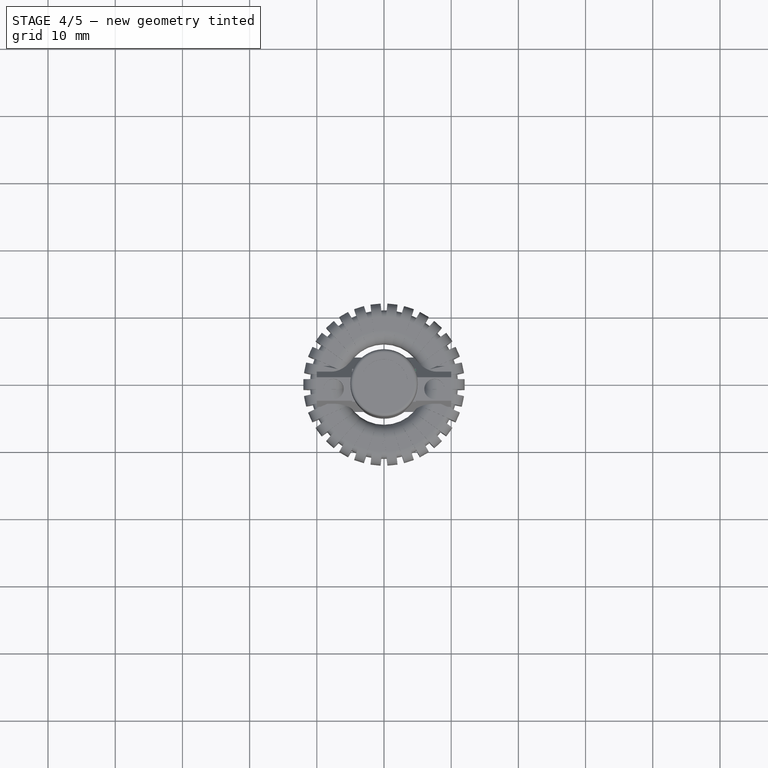
[diagram: stage 4 of 5 — top view after this stage's code; geometry added in this stage tinted green]
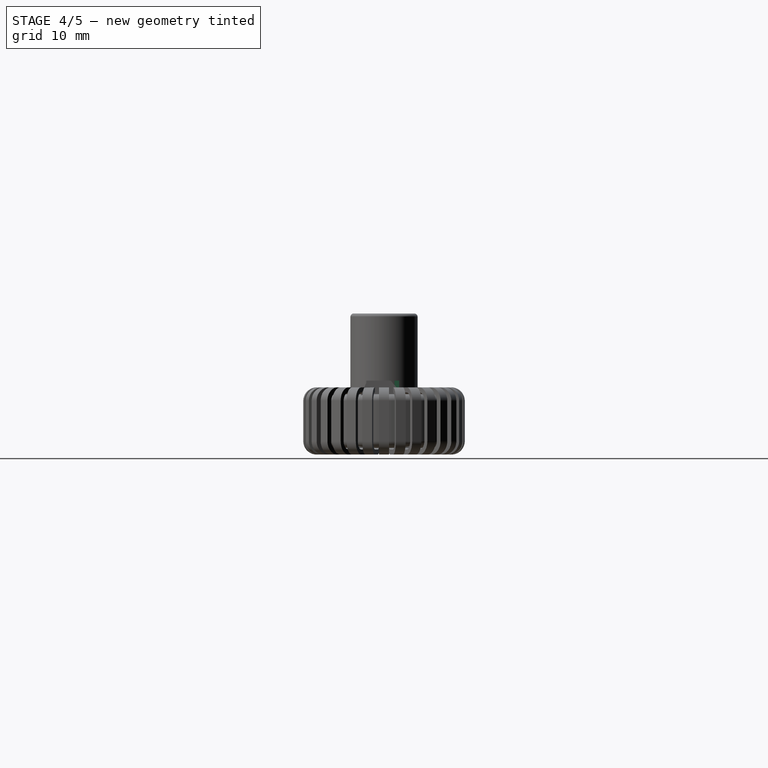
[diagram: stage 4 of 5 — right view after this stage's code; geometry added in this stage tinted green]
FEATURE [PartDesign::Body] Body002  label="Cooling Fin left"
  Group = -> [Sketch007,Pad002,Sketch006,Pocket003,Sketch005,Pocket004]
  Origin = -> Origin003
  Placement = pos=(-18.5,4.5e-15,1.65) rot=(0,0,1;3.14159rad)
  Tip = -> Pocket004
FEATURE [Sketcher::SketchObject] Sketch008
  MapMode = 5
  Support = -> [XY_Plane005]
  sketch-geometry (4):
    g0: LineSegment StartX=-4.75 StartY=2.25 StartZ=0 EndX=4.75 EndY=2.25 EndZ=0
    g1: LineSegment StartX=4.75 StartY=2.25 StartZ=0 EndX=4.75 EndY=-2.25 EndZ=0
    g2: LineSegment StartX=4.75 StartY=-2.25 StartZ=0 EndX=-4.75 EndY=-2.25 EndZ=0
    g3: LineSegment StartX=-4.75 StartY=-2.25 StartZ=0 EndX=-4.75 EndY=2.25 EndZ=0
  constraints (10):
    c: Coincident(g0,g1)
    c: Coincident(g1,g2)
    c: Coincident(g2,g3)
    c: Coincident(g3,g0)
    c: Horizontal(g2)
    c: Vertical(g3)
    c: Symmetric(g0,g0,g-2)
    c: Symmetric(g0,g1,g-1)
    c: DistanceX(g0,g0) = 9.5
    c: DistanceY(g3,g3) = 4.5
FEATURE [PartDesign::Pad] Pad003  label="3296 Potentiometer Baseblock"
  Length = 10
  Length2 = 100
  Profile = -> Sketch008
  Type = 0
FEATURE [Sketcher::SketchObject] Sketch009
  MapMode = 5
  Placement = pos=(0,-2.25,0) rot=(1,0,0;1.5708rad)
  Support = -> [Pad003]
  sketch-geometry (8):
    g0: LineSegment StartX=-4.75 StartY=10 StartZ=0 EndX=-4.25 EndY=10 EndZ=0
    g1: LineSegment StartX=-4.25 StartY=10 StartZ=0 EndX=-4.25 EndY=9.5 EndZ=0
    g2: LineSegment StartX=-4.25 StartY=9.5 StartZ=0 EndX=-4.75 EndY=9.5 EndZ=0
    g3: LineSegment StartX=-4.75 StartY=9.5 StartZ=0 EndX=-4.75 EndY=10 EndZ=0
    g4: LineSegment StartX=4.75 StartY=10 StartZ=0 EndX=4.25 EndY=10 EndZ=0
    g5: LineSegment StartX=4.25 StartY=10 StartZ=0 EndX=4.25 EndY=9.5 EndZ=0
    g6: LineSegment StartX=4.25 StartY=9.5 StartZ=0 EndX=4.75 EndY=9.5 EndZ=0
    g7: LineSegment StartX=4.75 StartY=9.5 StartZ=0 EndX=4.75 EndY=10 EndZ=0
  constraints (23):
    c: Coincident(g0,g1)
    c: Coincident(g1,g2)
    c: Coincident(g2,g3)
    c: Coincident(g3,g0)
    c: Horizontal(g0)
    c: Horizontal(g2)
    c: Vertical(g1)
    c: Vertical(g3)
    c: Coincident(g4,g5)
    c: Coincident(g5,g6)
    c: Coincident(g6,g7)
    c: Coincident(g7,g4)
    c: Horizontal(g4)
    c: Horizontal(g6)
    c: Vertical(g5)
    c: Vertical(g7)
    c: Equal(g2,g6)
    c: Equal(g1,g5)
    c: DistanceX(g0,g0) = 0.5
    c: Symmetric(g0,g4,g-2)
    c: DistanceX(g0,g4) = 9.5
    c: DistanceY(g-1,g4) = 10
    c: Equal(g2,g1)
FEATURE [PartDesign::Pad] Pad004  label="Feet Side"
  BaseFeature = -> Pad003
  Length = 0.4
  Length2 = 100
  Profile = -> Sketch009
  Type = 0
FEATURE [PartDesign::Body] Body004  label="Screwhead"
  Group = -> [Sketch010,Pad005,Sketch011,Pocket005]
  Origin = -> Origin006
  Tip = -> Pocket005
FEATURE [Sketcher::SketchObject] Sketch012
  MapMode = 5
  Placement = pos=(0,0,0) rot=(1,0,0;3.14159rad)
  Support = -> [Pad004]
  sketch-geometry (8):
    g0: LineSegment StartX=-4.75 StartY=-2.25 StartZ=0 EndX=-4.25 EndY=-2.25 EndZ=0
    g1: LineSegment StartX=-4.25 StartY=-2.25 StartZ=0 EndX=-4.25 EndY=2.65 EndZ=0
    g2: LineSegment StartX=-4.25 StartY=2.65 StartZ=0 EndX=-4.75 EndY=2.65 EndZ=0
    g3: LineSegment StartX=-4.75 StartY=2.65 StartZ=0 EndX=-4.75 EndY=-2.25 EndZ=0
    g4: LineSegment StartX=4.75 StartY=2.65 StartZ=0 EndX=4.25 EndY=2.65 EndZ=0
    g5: LineSegment StartX=4.25 StartY=2.65 StartZ=0 EndX=4.25 EndY=-2.25 EndZ=0
    g6: LineSegment StartX=4.25 StartY=-2.25 StartZ=0 EndX=4.75 EndY=-2.25 EndZ=0
    g7: LineSegment StartX=4.75 StartY=-2.25 StartZ=0 EndX=4.75 EndY=2.65 EndZ=0
  constraints (23):
    c: Coincident(g0,g1)
    c: Coincident(g1,g2)
    c: Coincident(g2,g3)
    c: Coincident(g3,g0)
    c: Horizontal(g0)
    c: Horizontal(g2)
    c: Vertical(g1)
    c: Vertical(g3)
    c: Coincident(g4,g5)
    c: Coincident(g5,g6)
    c: Coincident(g6,g7)
    c: Coincident(g7,g4)
    c: Horizontal(g4)
    c: Horizontal(g6)
    c: Vertical(g5)
    c: Vertical(g7)
    c: Symmetric(g4,g2,g-2)
    c: DistanceX(g2,g4) = 9.5
    c: DistanceY(g3,g3) = 4.9
    c: DistanceX(g2,g2) = 0.5
    c: Equal(g1,g5)
    c: DistanceY(g0,g-1) = 2.25
    c: Equal(g4,g2)
FEATURE [PartDesign::Pad] Pad006  label="Feet Bottom"
  BaseFeature = -> Pad004
  Length = 0.5
  Length2 = 100
  Profile = -> Sketch012
  Type = 0
FEATURE [PartDesign::Body] Body003  label="Shell"
  Group = -> [Sketch008,Pad003,Sketch009,Pad004,Sketch012,Pad006]
  Origin = -> Origin005
  Tip = -> Pad006
FEATURE [App::Part] Part001  label="3296 Potentiometer CC"
  Group = -> [Body003,Body004]
  Origin = -> Origin004
  Placement = pos=(-5,30,2.15) rot=(0,0,1;0rad)
FEATURE [Sketcher::SketchObject] Sketch013
  AttachmentOffset = pos=(0,0,10) rot=(0,0,1;0rad)
  MapMode = 5
  Placement = pos=(0,0,10) rot=(0,0,1;0rad)
  Support = -> [XY_Plane008]
  sketch-geometry (1):
    g0: Circle CenterX=-3.6 CenterY=1.1 CenterZ=0 NormalX=0 NormalY=0 NormalZ=1 AngleXU=0 Radius=1
  constraints (3):
    c: Radius(g0) = 1
    c: DistanceX(g0,g-1) = 3.6
    c: DistanceY(g-1,g0) = 1.1
FEATURE [Sketcher::SketchObject] Sketch015
  MapMode = 5
  Support = -> [XY_Plane007]
  sketch-geometry (4):
    g0: LineSegment StartX=-4.75 StartY=2.25 StartZ=0 EndX=4.75 EndY=2.25 EndZ=0
    g1: LineSegment StartX=4.75 StartY=2.25 StartZ=0 EndX=4.75 EndY=-2.25 EndZ=0
    g2: LineSegment StartX=4.75 StartY=-2.25 StartZ=0 EndX=-4.75 EndY=-2.25 EndZ=0
    g3: LineSegment StartX=-4.75 StartY=-2.25 StartZ=0 EndX=-4.75 EndY=2.25 EndZ=0
  constraints (10):
    c: Coincident(g0,g1)
    c: Coincident(g1,g2)
    c: Coincident(g2,g3)
    c: Coincident(g3,g0)
    c: Horizontal(g2)
    c: Vertical(g3)
    c: Symmetric(g0,g0,g-2)
    c: Symmetric(g0,g1,g-1)
    c: DistanceX(g0,g0) = 9.5
    c: DistanceY(g3,g3) = 4.5
FEATURE [PartDesign::Pad] Pad007  label="3296 Potentiometer Baseblock001"
  Length = 10
  Length2 = 100
  Profile = -> Sketch015
  Type = 0
FEATURE [Sketcher::SketchObject] Sketch014
  MapMode = 5
  Placement = pos=(0,-2.25,0) rot=(1,0,0;1.5708rad)
  Support = -> [Pad007]
  sketch-geometry (8):
    g0: LineSegment StartX=-4.75 StartY=10 StartZ=0 EndX=-4.25 EndY=10 EndZ=0
    g1: LineSegment StartX=-4.25 StartY=10 StartZ=0 EndX=-4.25 EndY=9.5 EndZ=0
    g2: LineSegment StartX=-4.25 StartY=9.5 StartZ=0 EndX=-4.75 EndY=9.5 EndZ=0
    g3: LineSegment StartX=-4.75 StartY=9.5 StartZ=0 EndX=-4.75 EndY=10 EndZ=0
    g4: LineSegment StartX=4.75 StartY=10 StartZ=0 EndX=4.25 EndY=10 EndZ=0
    g5: LineSegment StartX=4.25 StartY=10 StartZ=0 EndX=4.25 EndY=9.5 EndZ=0
    g6: LineSegment StartX=4.25 StartY=9.5 StartZ=0 EndX=4.75 EndY=9.5 EndZ=0
    g7: LineSegment StartX=4.75 StartY=9.5 StartZ=0 EndX=4.75 EndY=10 EndZ=0
  constraints (23):
    c: Coincident(g0,g1)
    c: Coincident(g1,g2)
    c: Coincident(g2,g3)
    c: Coincident(g3,g0)
    c: Horizontal(g0)
    c: Horizontal(g2)
    c: Vertical(g1)
    c: Vertical(g3)
    c: Coincident(g4,g5)
    c: Coincident(g5,g6)
    c: Coincident(g6,g7)
    c: Coincident(g7,g4)
    c: Horizontal(g4)
    c: Horizontal(g6)
    c: Vertical(g5)
    c: Vertical(g7)
    c: Equal(g2,g6)
    c: Equal(g1,g5)
    c: DistanceX(g0,g0) = 0.5
    c: Symmetric(g0,g4,g-2)
    c: DistanceX(g0,g4) = 9.5
    c: DistanceY(g-1,g4) = 10
    c: Equal(g2,g1)
FEATURE [PartDesign::Pad] Pad008  label="Feet Side001"
  BaseFeature = -> Pad007
  Length = 0.4
  Length2 = 100
  Profile = -> Sketch014
  Type = 0
FEATURE [PartDesign::Pad] Pad009  label="3296 Screwhead Baseblock001"
  Length = 1.6
  Length2 = 100
  Profile = -> Sketch013
  Type = 0
FEATURE [Sketcher::SketchObject] Sketch016
  ExternalGeometry = -> [Pad009]
  MapMode = 5
  Placement = pos=(0,0,11.6) rot=(0,0,1;0rad)
  Support = -> [Pad009]
  sketch-geometry (6):
    g0: LineSegment StartX=-4.725 StartY=0.925 StartZ=0 EndX=-2.475 EndY=0.925 EndZ=0
    g1: LineSegment StartX=-2.475 StartY=0.925 StartZ=0 EndX=-2.475 EndY=1.275 EndZ=0
    g2: LineSegment StartX=-2.475 StartY=1.275 StartZ=0 EndX=-4.725 EndY=1.275 EndZ=0
    g3: LineSegment StartX=-4.725 StartY=1.275 StartZ=0 EndX=-4.725 EndY=0.925 EndZ=0
    g4: LineSegment [constr] StartX=-4.725 StartY=1.1 StartZ=0 EndX=-2.475 EndY=1.1 EndZ=0
    g5: LineSegment [constr] StartX=-3.6 StartY=1.275 StartZ=0 EndX=-3.6 EndY=0.925 EndZ=0
  constraints (18):
    c: Coincident(g0,g1)
    c: Coincident(g1,g2)
    c: Coincident(g2,g3)
    c: Coincident(g3,g0)
    c: Horizontal(g0)
    c: Horizontal(g2)
    c: Vertical(g1)
    c: Vertical(g3)
    c: PointOnObject(g4,g3)
    c: Horizontal(g4)
    c: PointOnObject(g5,g0)
    c: Vertical(g5)
    c: Symmetric(g1,g2,g5)
    c: Symmetric(g1,g0,g4)
    c: PointOnObject(g-3,g5)
    c: PointOnObject(g-3,g4)
    c: DistanceX(g2,g2) = 2.25
    c: DistanceY(g1,g1) = 0.35
FEATURE [PartDesign::Pocket] Pocket006  label="Screw Groove001"
  BaseFeature = -> Pad009
  Length = 0.5
  Length2 = 100
  Profile = -> Sketch016
  Type = 0
FEATURE [PartDesign::Body] Body006  label="Screwhead001"
  Group = -> [Sketch013,Pad009,Sketch016,Pocket006]
  Origin = -> Origin009
  Tip = -> Pocket006
FEATURE [Sketcher::SketchObject] Sketch017
  MapMode = 5
  Placement = pos=(0,0,0) rot=(1,0,0;3.14159rad)
  Support = -> [Pad008]
  sketch-geometry (8):
    g0: LineSegment StartX=-4.75 StartY=-2.25 StartZ=0 EndX=-4.25 EndY=-2.25 EndZ=0
    g1: LineSegment StartX=-4.25 StartY=-2.25 StartZ=0 EndX=-4.25 EndY=2.65 EndZ=0
    g2: LineSegment StartX=-4.25 StartY=2.65 StartZ=0 EndX=-4.75 EndY=2.65 EndZ=0
    g3: LineSegment StartX=-4.75 StartY=2.65 StartZ=0 EndX=-4.75 EndY=-2.25 EndZ=0
    g4: LineSegment StartX=4.75 StartY=2.65 StartZ=0 EndX=4.25 EndY=2.65 EndZ=0
    g5: LineSegment StartX=4.25 StartY=2.65 StartZ=0 EndX=4.25 EndY=-2.25 EndZ=0
    g6: LineSegment StartX=4.25 StartY=-2.25 StartZ=0 EndX=4.75 EndY=-2.25 EndZ=0
    g7: LineSegment StartX=4.75 StartY=-2.25 StartZ=0 EndX=4.75 EndY=2.65 EndZ=0
  constraints (23):
    c: Coincident(g0,g1)
    c: Coincident(g1,g2)
    c: Coincident(g2,g3)
    c: Coincident(g3,g0)
    c: Horizontal(g0)
    c: Horizontal(g2)
    c: Vertical(g1)
    c: Vertical(g3)
    c: Coincident(g4,g5)
    c: Coincident(g5,g6)
    c: Coincident(g6,g7)
    c: Coincident(g7,g4)
    c: Horizontal(g4)
    c: Horizontal(g6)
    c: Vertical(g5)
    c: Vertical(g7)
    c: Symmetric(g4,g2,g-2)
    c: DistanceX(g2,g4) = 9.5
    c: DistanceY(g3,g3) = 4.9
    c: DistanceX(g2,g2) = 0.5
    c: Equal(g1,g5)
    c: DistanceY(g0,g-1) = 2.25
    c: Equal(g4,g2)
FEATURE [PartDesign::Pad] Pad010  label="Feet Bottom001"
  BaseFeature = -> Pad008
  Length = 0.5
  Length2 = 100
  Profile = -> Sketch017
  Type = 0
FEATURE [Sketcher::SketchObject] Sketch020
  MapMode = 5
  Placement = pos=(0,0,19.5) rot=(0,0,1;0rad)
  Support = -> [Pocket007]
  sketch-geometry (1):
    g0: Circle CenterX=0 CenterY=0 CenterZ=0 NormalX=0 NormalY=0 NormalZ=1 AngleXU=0 Radius=4.5
  constraints (2):
    c: Coincident(g0,g-1)
    c: Radius(g0) = 4.5
FEATURE [PartDesign::Pocket] Pocket008  label="Top Hole widening"
  BaseFeature = -> Pocket007
  Length = 1
  Length2 = 100
  Profile = -> Sketch020
  Type = 0
FEATURE [PartDesign::Fillet] Fillet  label="Top Edge rounded"
  Base = -> Pocket008 [Edge3]
  BaseFeature = -> Pocket008
  Radius = 0.5
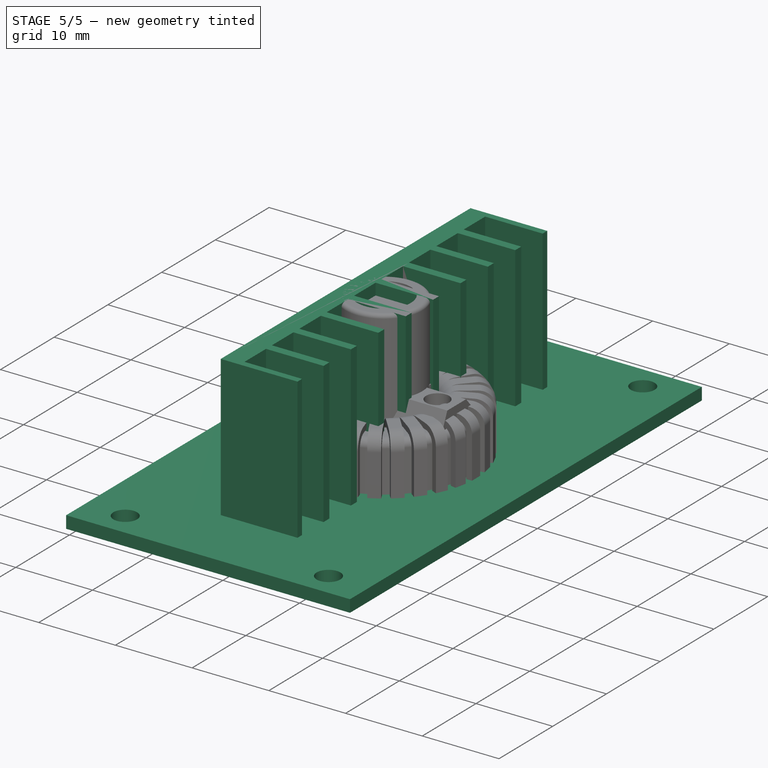
[diagram: stage 5 of 5 — iso view after this stage's code; geometry added in this stage tinted green]
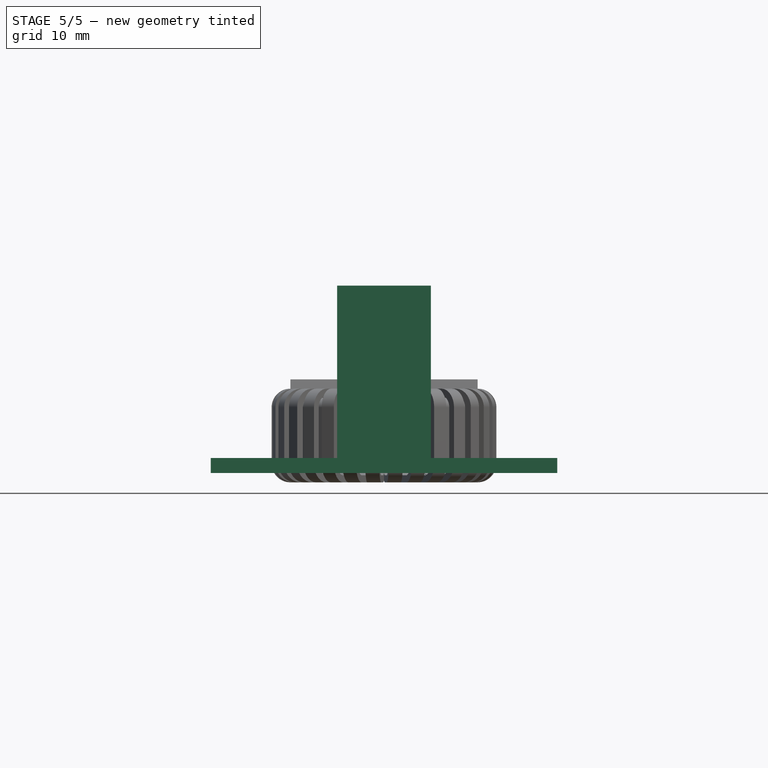
[diagram: stage 5 of 5 — front view after this stage's code; geometry added in this stage tinted green]
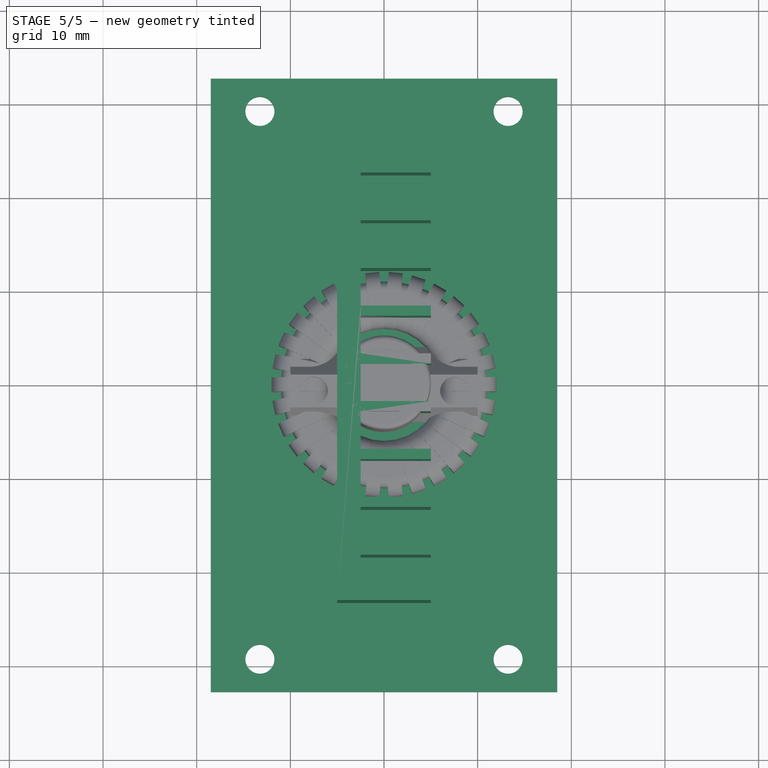
[diagram: stage 5 of 5 — top view after this stage's code; geometry added in this stage tinted green]
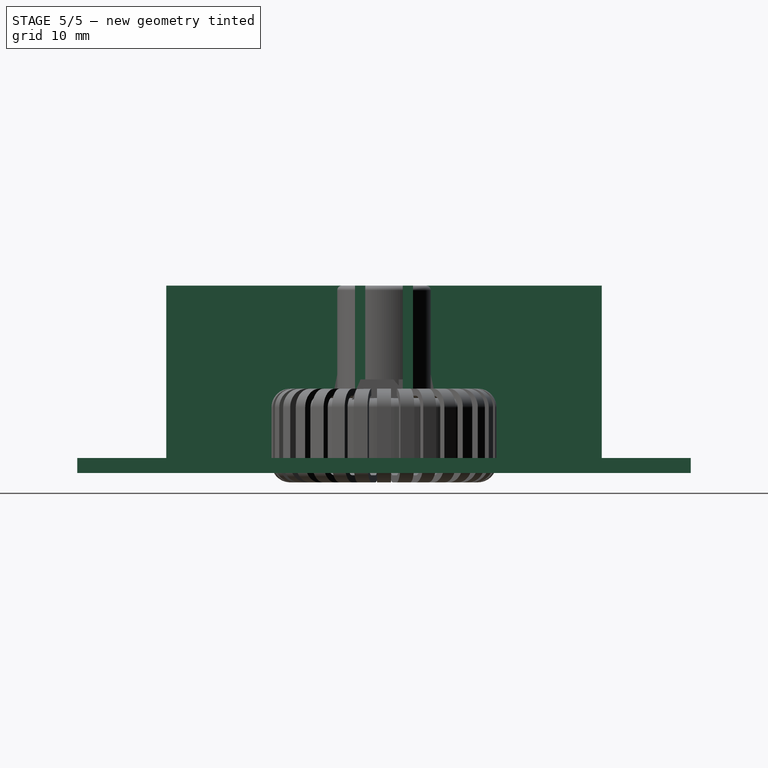
[diagram: stage 5 of 5 — right view after this stage's code; geometry added in this stage tinted green]
FEATURE [Sketcher::SketchObject] Sketch
  MapMode = 5
  Support = -> [XY_Plane001]
  sketch-geometry (4):
    g0: LineSegment StartX=-18.5 StartY=32.75 StartZ=0 EndX=18.5 EndY=32.75 EndZ=0
    g1: LineSegment StartX=18.5 StartY=32.75 StartZ=0 EndX=18.5 EndY=-32.75 EndZ=0
    g2: LineSegment StartX=18.5 StartY=-32.75 StartZ=0 EndX=-18.5 EndY=-32.75 EndZ=0
    g3: LineSegment StartX=-18.5 StartY=-32.75 StartZ=0 EndX=-18.5 EndY=32.75 EndZ=0
  constraints (10):
    c: Coincident(g0,g1)
    c: Coincident(g1,g2)
    c: Coincident(g2,g3)
    c: Coincident(g3,g0)
    c: Horizontal(g2)
    c: Vertical(g3)
    c: Symmetric(g0,g0,g-2)
    c: Symmetric(g0,g1,g-1)
    c: DistanceX(g0,g0) = 37
    c: DistanceY(g1,g1) = 65.5
FEATURE [PartDesign::Pad] Pad  label="Thicken PCB Plate"
  Length = 1.6
  Length2 = 100
  Profile = -> Sketch
  Type = 0
FEATURE [Sketcher::SketchObject] Sketch001
  MapMode = 5
  Support = -> [XY_Plane001]
  sketch-geometry (4):
    g0: Circle CenterX=-13.25 CenterY=29.25 CenterZ=0 NormalX=0 NormalY=0 NormalZ=1 AngleXU=0 Radius=1.55
    g1: Circle CenterX=13.25 CenterY=29.25 CenterZ=0 NormalX=0 NormalY=0 NormalZ=1 AngleXU=0 Radius=1.55
    g2: Circle CenterX=-13.25 CenterY=-29.25 CenterZ=0 NormalX=0 NormalY=0 NormalZ=1 AngleXU=0 Radius=1.55
    g3: Circle CenterX=13.25 CenterY=-29.25 CenterZ=0 NormalX=0 NormalY=0 NormalZ=1 AngleXU=0 Radius=1.55
  constraints (9):
    c: Symmetric(g0,g1,g-2)
    c: Symmetric(g2,g3,g-2)
    c: Symmetric(g2,g0,g-1)
    c: DistanceX(g0,g1) = 26.5
    c: DistanceY(g3,g1) = 58.5
    c: Equal(g1,g0)
    c: Equal(g0,g2)
    c: Equal(g2,g3)
    c: Radius(g2) = 1.55
FEATURE [PartDesign::Pocket] Pocket
  BaseFeature = -> Pad
  Length = 5
  Length2 = 100
  Profile = -> Sketch001
  Reversed = true
  Type = 0
FEATURE [PartDesign::Body] Body  label="PCB"
  Group = -> [Sketch,Pad,Sketch001,Pocket]
  Origin = -> Origin001
  Tip = -> Pocket
FEATURE [Sketcher::SketchObject] Sketch002
  MapMode = 5
  Support = -> [XY_Plane002]
  sketch-geometry (4):
    g0: LineSegment StartX=-5 StartY=23.25 StartZ=0 EndX=5 EndY=23.25 EndZ=0
    g1: LineSegment StartX=5 StartY=23.25 StartZ=0 EndX=5 EndY=-23.25 EndZ=0
    g2: LineSegment StartX=5 StartY=-23.25 StartZ=0 EndX=-5 EndY=-23.25 EndZ=0
    g3: LineSegment StartX=-5 StartY=-23.25 StartZ=0 EndX=-5 EndY=23.25 EndZ=0
  constraints (10):
    c: Coincident(g0,g1)
    c: Coincident(g1,g2)
    c: Coincident(g2,g3)
    c: Coincident(g3,g0)
    c: Horizontal(g2)
    c: Vertical(g3)
    c: DistanceX(g0,g0) = 10
    c: DistanceY(g1,g1) = 46.5
    c: Symmetric(g0,g1,g-1)
    c: Symmetric(g0,g0,g-2)
FEATURE [PartDesign::Pad] Pad001  label="Cooling Fin Baseblock"
  Length = 20
  Length2 = 100
  Profile = -> Sketch002
  Type = 0
FEATURE [Sketcher::SketchObject] Sketch003
  MapMode = 5
  Placement = pos=(0,0,20) rot=(0,0,1;0rad)
  Support = -> [Pad001]
  sketch-geometry (36):
    g0: LineSegment StartX=-2.5 StartY=22.4 StartZ=0 EndX=7.5 EndY=22.4 EndZ=0
    g1: LineSegment StartX=7.5 StartY=22.4 StartZ=0 EndX=7.5 EndY=18.4 EndZ=0
    g2: LineSegment StartX=7.5 StartY=18.4 StartZ=0 EndX=-2.5 EndY=18.4 EndZ=0
    g3: LineSegment StartX=-2.5 StartY=18.4 StartZ=0 EndX=-2.5 EndY=22.4 EndZ=0
    g4: LineSegment StartX=-2.5 StartY=12.2 StartZ=0 EndX=7.5 EndY=12.2 EndZ=0
    g5: LineSegment StartX=7.5 StartY=12.2 StartZ=0 EndX=7.5 EndY=8.2 EndZ=0
    g6: LineSegment StartX=7.5 StartY=8.2 StartZ=0 EndX=-2.5 EndY=8.2 EndZ=0
    g7: LineSegment StartX=-2.5 StartY=8.2 StartZ=0 EndX=-2.5 EndY=12.2 EndZ=0
    g8: LineSegment StartX=-2.5 StartY=17.3 StartZ=0 EndX=7.5 EndY=17.3 EndZ=0
    g9: LineSegment StartX=7.5 StartY=17.3 StartZ=0 EndX=7.5 EndY=13.3 EndZ=0
    g10: LineSegment StartX=7.5 StartY=13.3 StartZ=0 EndX=-2.5 EndY=13.3 EndZ=0
    g11: LineSegment StartX=-2.5 StartY=13.3 StartZ=0 EndX=-2.5 EndY=17.3 EndZ=0
    g12: LineSegment StartX=-2.5 StartY=7.1 StartZ=0 EndX=7.5 EndY=7.1 EndZ=0
    g13: LineSegment StartX=7.5 StartY=7.1 StartZ=0 EndX=7.5 EndY=3.1 EndZ=0
    g14: LineSegment StartX=7.5 StartY=3.1 StartZ=0 EndX=-2.5 EndY=3.1 EndZ=0
    g15: LineSegment StartX=-2.5 StartY=3.1 StartZ=0 EndX=-2.5 EndY=7.1 EndZ=0
    g16: LineSegment StartX=-2.5 StartY=2 StartZ=0 EndX=7.5 EndY=2 EndZ=0
    g17: LineSegment StartX=7.5 StartY=2 StartZ=0 EndX=7.5 EndY=-2 EndZ=0
    g18: LineSegment StartX=7.5 StartY=-2 StartZ=0 EndX=-2.5 EndY=-2 EndZ=0
    g19: LineSegment StartX=-2.5 StartY=-2 StartZ=0 EndX=-2.5 EndY=2 EndZ=0
    g20: LineSegment StartX=-2.5 StartY=-22.4 StartZ=0 EndX=7.5 EndY=-22.4 EndZ=0
    g21: LineSegment StartX=7.5 StartY=-22.4 StartZ=0 EndX=7.5 EndY=-18.4 EndZ=0
    g22: LineSegment StartX=7.5 StartY=-18.4 StartZ=0 EndX=-2.5 EndY=-18.4 EndZ=0
    g23: LineSegment StartX=-2.5 StartY=-18.4 StartZ=0 EndX=-2.5 EndY=-22.4 EndZ=0
    g24: LineSegment StartX=-2.5 StartY=-17.3 StartZ=0 EndX=7.5 EndY=-17.3 EndZ=0
    g25: LineSegment StartX=7.5 StartY=-17.3 StartZ=0 EndX=7.5 EndY=-13.3 EndZ=0
    g26: LineSegment StartX=7.5 StartY=-13.3 StartZ=0 EndX=-2.5 EndY=-13.3 EndZ=0
    g27: LineSegment StartX=-2.5 StartY=-13.3 StartZ=0 EndX=-2.5 EndY=-17.3 EndZ=0
    g28: LineSegment StartX=-2.5 StartY=-12.2 StartZ=0 EndX=7.5 EndY=-12.2 EndZ=0
    g29: LineSegment StartX=7.5 StartY=-12.2 StartZ=0 EndX=7.5 EndY=-8.2 EndZ=0
    g30: LineSegment StartX=7.5 StartY=-8.2 StartZ=0 EndX=-2.5 EndY=-8.2 EndZ=0
    g31: LineSegment StartX=-2.5 StartY=-8.2 StartZ=0 EndX=-2.5 EndY=-12.2 EndZ=0
    g32: LineSegment StartX=-2.5 StartY=-7.1 StartZ=0 EndX=7.5 EndY=-7.1 EndZ=0
    g33: LineSegment StartX=7.5 StartY=-7.1 StartZ=0 EndX=7.5 EndY=-3.1 EndZ=0
    g34: LineSegment StartX=7.5 StartY=-3.1 StartZ=0 EndX=-2.5 EndY=-3.1 EndZ=0
    g35: LineSegment StartX=-2.5 StartY=-3.1 StartZ=0 EndX=-2.5 EndY=-7.1 EndZ=0
  constraints (107):
    c: Coincident(g0,g1)
    c: Coincident(g1,g2)
    c: Coincident(g2,g3)
    c: Coincident(g3,g0)
    c: Horizontal(g0)
    c: Horizontal(g2)
    c: Vertical(g1)
    c: Vertical(g3)
    c: Coincident(g4,g5)
    c: Coincident(g5,g6)
    c: Coincident(g6,g7)
    c: Coincident(g7,g4)
    c: Horizontal(g4)
    c: Horizontal(g6)
    c: Vertical(g5)
    c: Vertical(g7)
    c: Coincident(g8,g9)
    c: Coincident(g9,g10)
    c: Coincident(g10,g11)
    c: Coincident(g11,g8)
    c: Horizontal(g8)
    c: Horizontal(g10)
    c: Vertical(g9)
    c: Vertical(g11)
    c: Coincident(g12,g13)
    c: Coincident(g13,g14)
    c: Coincident(g14,g15)
    c: Coincident(g15,g12)
    c: Horizontal(g12)
    c: Horizontal(g14)
    c: Vertical(g13)
    c: Vertical(g15)
    c: Coincident(g16,g17)
    c: Coincident(g17,g18)
    c: Coincident(g18,g19)
    c: Coincident(g19,g16)
    c: Horizontal(g16)
    c: Horizontal(g18)
    c: Vertical(g17)
    c: Coincident(g20,g21)
    c: Coincident(g21,g22)
    c: Coincident(g22,g23)
    c: Coincident(g23,g20)
    c: Horizontal(g20)
    c: Horizontal(g22)
    c: Vertical(g21)
    c: Vertical(g23)
    c: Coincident(g24,g25)
    c: Coincident(g25,g26)
    c: Coincident(g26,g27)
    c: Coincident(g27,g24)
    c: Horizontal(g24)
    c: Horizontal(g26)
    c: Vertical(g25)
    c: Vertical(g27)
    c: Coincident(g28,g29)
    c: Coincident(g29,g30)
    c: Coincident(g30,g31)
    c: Coincident(g31,g28)
    c: Horizontal(g28)
    c: Horizontal(g30)
    c: Vertical(g29)
    c: Vertical(g31)
    c: Coincident(g32,g33)
    c: Coincident(g33,g34)
    c: Coincident(g34,g35)
    c: Coincident(g35,g32)
    c: Horizontal(g32)
    c: Horizontal(g34)
    c: Vertical(g33)
    c: Vertical(g35)
    c: Vertical(g22,g24)
    c: Vertical(g28,g26)
    c: Vertical(g32,g30)
    c: Vertical(g18,g34)
    c: Vertical(g14,g16)
    c: Vertical(g10,g12)
    c: Vertical(g6,g8)
    c: Vertical(g2,g4)
    c: Equal(g3,g7)
    c: Equal(g7,g11)
    c: Equal(g11,g15)
    c: Equal(g15,g19)
    c: Equal(g19,g35)
    c: Equal(g35,g31)
    c: Equal(g31,g27)
    c: Equal(g27,g23)
    c: DistanceY(g3,g3) = 4
    c: DistanceX(g18,g-1) = 2.5
    c: Symmetric(g16,g18,g-1)
    c: DistanceY(g34,g18) = 1.1
    c: DistanceY(g30,g32) = 1.1
    c: DistanceY(g26,g28) = 1.1
    c: DistanceY(g22,g24) = 1.1
    c: DistanceY(g16,g14) = 1.1
    c: DistanceY(g12,g6) = 1.1
    c: DistanceY(g4,g10) = 1.1
    c: DistanceY(g8,g2) = 1.1
    c: Vertical(g1,g8)
    c: Vertical(g9,g4)
    c: Vertical(g5,g12)
    c: Vertical(g13,g16)
    c: Vertical(g17,g33)
    c: Vertical(g32,g29)
    c: Vertical(g28,g25)
    c: Vertical(g24,g21)
    c: DistanceX(g0,g0) = 10
FEATURE [PartDesign::Pocket] Pocket001  label="Cutout Fins"
  BaseFeature = -> Pad001
  Length = 20
  Length2 = 100
  Profile = -> Sketch003
  Type = 0
FEATURE [Sketcher::SketchObject] Sketch004
  MapMode = 5
  Placement = pos=(-2.5,0,0) rot=(0.57735,0.57735,0.57735;2.0944rad)
  Support = -> [Pocket001]
  sketch-geometry (1):
    g0: Circle CenterX=0 CenterY=15 CenterZ=0 NormalX=0 NormalY=0 NormalZ=1 AngleXU=0 Radius=1.5
  constraints (3):
    c: PointOnObject(g0,g-2)
    c: DistanceY(g-1,g0) = 15
    c: Radius(g0) = 1.5
FEATURE [PartDesign::Pocket] Pocket002
  BaseFeature = -> Pocket001
  Length = 5
  Length2 = 100
  Profile = -> Sketch004
  Type = 0
FEATURE [PartDesign::Body] Body001  label="Cooling Fin right"
  Group = -> [Sketch002,Pad001,Sketch003,Pocket001,Sketch004,Pocket002]
  Origin = -> Origin002
  Placement = pos=(18.5,0,1.65) rot=(0,0,1;0rad)
  Tip = -> Pocket002
FEATURE [Sketcher::SketchObject] Sketch007
  MapMode = 5
  Support = -> [XY_Plane003]
  sketch-geometry (4):
    g0: LineSegment StartX=-5 StartY=23.25 StartZ=0 EndX=5 EndY=23.25 EndZ=0
    g1: LineSegment StartX=5 StartY=23.25 StartZ=0 EndX=5 EndY=-23.25 EndZ=0
    g2: LineSegment StartX=5 StartY=-23.25 StartZ=0 EndX=-5 EndY=-23.25 EndZ=0
    g3: LineSegment StartX=-5 StartY=-23.25 StartZ=0 EndX=-5 EndY=23.25 EndZ=0
  constraints (10):
    c: Coincident(g0,g1)
    c: Coincident(g1,g2)
    c: Coincident(g2,g3)
    c: Coincident(g3,g0)
    c: Horizontal(g2)
    c: Vertical(g3)
    c: DistanceX(g0,g0) = 10
    c: DistanceY(g1,g1) = 46.5
    c: Symmetric(g0,g1,g-1)
    c: Symmetric(g0,g0,g-2)
FEATURE [PartDesign::Pad] Pad002  label="Cooling Fin Baseblock001"
  Length = 20
  Length2 = 100
  Profile = -> Sketch007
  Type = 0
FEATURE [Sketcher::SketchObject] Sketch006
  MapMode = 5
  Placement = pos=(0,0,20) rot=(0,0,1;0rad)
  Support = -> [Pad002]
  sketch-geometry (36):
    g0: LineSegment StartX=-2.5 StartY=22.4 StartZ=0 EndX=7.5 EndY=22.4 EndZ=0
    g1: LineSegment StartX=7.5 StartY=22.4 StartZ=0 EndX=7.5 EndY=18.4 EndZ=0
    g2: LineSegment StartX=7.5 StartY=18.4 StartZ=0 EndX=-2.5 EndY=18.4 EndZ=0
    g3: LineSegment StartX=-2.5 StartY=18.4 StartZ=0 EndX=-2.5 EndY=22.4 EndZ=0
    g4: LineSegment StartX=-2.5 StartY=12.2 StartZ=0 EndX=7.5 EndY=12.2 EndZ=0
    g5: LineSegment StartX=7.5 StartY=12.2 StartZ=0 EndX=7.5 EndY=8.2 EndZ=0
    g6: LineSegment StartX=7.5 StartY=8.2 StartZ=0 EndX=-2.5 EndY=8.2 EndZ=0
    g7: LineSegment StartX=-2.5 StartY=8.2 StartZ=0 EndX=-2.5 EndY=12.2 EndZ=0
    g8: LineSegment StartX=-2.5 StartY=17.3 StartZ=0 EndX=7.5 EndY=17.3 EndZ=0
    g9: LineSegment StartX=7.5 StartY=17.3 StartZ=0 EndX=7.5 EndY=13.3 EndZ=0
    g10: LineSegment StartX=7.5 StartY=13.3 StartZ=0 EndX=-2.5 EndY=13.3 EndZ=0
    g11: LineSegment StartX=-2.5 StartY=13.3 StartZ=0 EndX=-2.5 EndY=17.3 EndZ=0
    g12: LineSegment StartX=-2.5 StartY=7.1 StartZ=0 EndX=7.5 EndY=7.1 EndZ=0
    g13: LineSegment StartX=7.5 StartY=7.1 StartZ=0 EndX=7.5 EndY=3.1 EndZ=0
    g14: LineSegment StartX=7.5 StartY=3.1 StartZ=0 EndX=-2.5 EndY=3.1 EndZ=0
    g15: LineSegment StartX=-2.5 StartY=3.1 StartZ=0 EndX=-2.5 EndY=7.1 EndZ=0
    g16: LineSegment StartX=-2.5 StartY=2 StartZ=0 EndX=7.5 EndY=2 EndZ=0
    g17: LineSegment StartX=7.5 StartY=2 StartZ=0 EndX=7.5 EndY=-2 EndZ=0
    g18: LineSegment StartX=7.5 StartY=-2 StartZ=0 EndX=-2.5 EndY=-2 EndZ=0
    g19: LineSegment StartX=-2.5 StartY=-2 StartZ=0 EndX=-2.5 EndY=2 EndZ=0
    g20: LineSegment StartX=-2.5 StartY=-22.4 StartZ=0 EndX=7.5 EndY=-22.4 EndZ=0
    g21: LineSegment StartX=7.5 StartY=-22.4 StartZ=0 EndX=7.5 EndY=-18.4 EndZ=0
    g22: LineSegment StartX=7.5 StartY=-18.4 StartZ=0 EndX=-2.5 EndY=-18.4 EndZ=0
    g23: LineSegment StartX=-2.5 StartY=-18.4 StartZ=0 EndX=-2.5 EndY=-22.4 EndZ=0
    g24: LineSegment StartX=-2.5 StartY=-17.3 StartZ=0 EndX=7.5 EndY=-17.3 EndZ=0
    g25: LineSegment StartX=7.5 StartY=-17.3 StartZ=0 EndX=7.5 EndY=-13.3 EndZ=0
    g26: LineSegment StartX=7.5 StartY=-13.3 StartZ=0 EndX=-2.5 EndY=-13.3 EndZ=0
    g27: LineSegment StartX=-2.5 StartY=-13.3 StartZ=0 EndX=-2.5 EndY=-17.3 EndZ=0
    g28: LineSegment StartX=-2.5 StartY=-12.2 StartZ=0 EndX=7.5 EndY=-12.2 EndZ=0
    g29: LineSegment StartX=7.5 StartY=-12.2 StartZ=0 EndX=7.5 EndY=-8.2 EndZ=0
    g30: LineSegment StartX=7.5 StartY=-8.2 StartZ=0 EndX=-2.5 EndY=-8.2 EndZ=0
    g31: LineSegment StartX=-2.5 StartY=-8.2 StartZ=0 EndX=-2.5 EndY=-12.2 EndZ=0
    g32: LineSegment StartX=-2.5 StartY=-7.1 StartZ=0 EndX=7.5 EndY=-7.1 EndZ=0
    g33: LineSegment StartX=7.5 StartY=-7.1 StartZ=0 EndX=7.5 EndY=-3.1 EndZ=0
    g34: LineSegment StartX=7.5 StartY=-3.1 StartZ=0 EndX=-2.5 EndY=-3.1 EndZ=0
    g35: LineSegment StartX=-2.5 StartY=-3.1 StartZ=0 EndX=-2.5 EndY=-7.1 EndZ=0
  constraints (107):
    c: Coincident(g0,g1)
    c: Coincident(g1,g2)
    c: Coincident(g2,g3)
    c: Coincident(g3,g0)
    c: Horizontal(g0)
    c: Horizontal(g2)
    c: Vertical(g1)
    c: Vertical(g3)
    c: Coincident(g4,g5)
    c: Coincident(g5,g6)
    c: Coincident(g6,g7)
    c: Coincident(g7,g4)
    c: Horizontal(g4)
    c: Horizontal(g6)
    c: Vertical(g5)
    c: Vertical(g7)
    c: Coincident(g8,g9)
    c: Coincident(g9,g10)
    c: Coincident(g10,g11)
    c: Coincident(g11,g8)
    c: Horizontal(g8)
    c: Horizontal(g10)
    c: Vertical(g9)
    c: Vertical(g11)
    c: Coincident(g12,g13)
    c: Coincident(g13,g14)
    c: Coincident(g14,g15)
    c: Coincident(g15,g12)
    c: Horizontal(g12)
    c: Horizontal(g14)
    c: Vertical(g13)
    c: Vertical(g15)
    c: Coincident(g16,g17)
    c: Coincident(g17,g18)
    c: Coincident(g18,g19)
    c: Coincident(g19,g16)
    c: Horizontal(g16)
    c: Horizontal(g18)
    c: Vertical(g17)
    c: Coincident(g20,g21)
    c: Coincident(g21,g22)
    c: Coincident(g22,g23)
    c: Coincident(g23,g20)
    c: Horizontal(g20)
    c: Horizontal(g22)
    c: Vertical(g21)
    c: Vertical(g23)
    c: Coincident(g24,g25)
    c: Coincident(g25,g26)
    c: Coincident(g26,g27)
    c: Coincident(g27,g24)
    c: Horizontal(g24)
    c: Horizontal(g26)
    c: Vertical(g25)
    c: Vertical(g27)
    c: Coincident(g28,g29)
    c: Coincident(g29,g30)
    c: Coincident(g30,g31)
    c: Coincident(g31,g28)
    c: Horizontal(g28)
    c: Horizontal(g30)
    c: Vertical(g29)
    c: Vertical(g31)
    c: Coincident(g32,g33)
    c: Coincident(g33,g34)
    c: Coincident(g34,g35)
    c: Coincident(g35,g32)
    c: Horizontal(g32)
    c: Horizontal(g34)
    c: Vertical(g33)
    c: Vertical(g35)
    c: Vertical(g22,g24)
    c: Vertical(g28,g26)
    c: Vertical(g32,g30)
    c: Vertical(g18,g34)
    c: Vertical(g14,g16)
    c: Vertical(g10,g12)
    c: Vertical(g6,g8)
    c: Vertical(g2,g4)
    c: Equal(g3,g7)
    c: Equal(g7,g11)
    c: Equal(g11,g15)
    c: Equal(g15,g19)
    c: Equal(g19,g35)
    c: Equal(g35,g31)
    c: Equal(g31,g27)
    c: Equal(g27,g23)
    c: DistanceY(g3,g3) = 4
    c: DistanceX(g18,g-1) = 2.5
    c: Symmetric(g16,g18,g-1)
    c: DistanceY(g34,g18) = 1.1
    c: DistanceY(g30,g32) = 1.1
    c: DistanceY(g26,g28) = 1.1
    c: DistanceY(g22,g24) = 1.1
    c: DistanceY(g16,g14) = 1.1
    c: DistanceY(g12,g6) = 1.1
    c: DistanceY(g4,g10) = 1.1
    c: DistanceY(g8,g2) = 1.1
    c: Vertical(g1,g8)
    c: Vertical(g9,g4)
    c: Vertical(g5,g12)
    c: Vertical(g13,g16)
    c: Vertical(g17,g33)
    c: Vertical(g32,g29)
    c: Vertical(g28,g25)
    c: Vertical(g24,g21)
    c: DistanceX(g0,g0) = 10
FEATURE [PartDesign::Pocket] Pocket003  label="Cutout Fins001"
  BaseFeature = -> Pad002
  Length = 20
  Length2 = 100
  Profile = -> Sketch006
  Type = 0
FEATURE [Sketcher::SketchObject] Sketch005
  MapMode = 5
  Placement = pos=(-2.5,0,0) rot=(0.57735,0.57735,0.57735;2.0944rad)
  Support = -> [Pocket003]
  sketch-geometry (1):
    g0: Circle CenterX=0 CenterY=15 CenterZ=0 NormalX=0 NormalY=0 NormalZ=1 AngleXU=0 Radius=1.5
  constraints (3):
    c: PointOnObject(g0,g-2)
    c: DistanceY(g-1,g0) = 15
    c: Radius(g0) = 1.5
FEATURE [PartDesign::Pocket] Pocket004
  BaseFeature = -> Pocket003
  Length = 5
  Length2 = 100
  Profile = -> Sketch005
  Type = 0
FEATURE [Sketcher::SketchObject] Sketch010
  AttachmentOffset = pos=(0,0,10) rot=(0,0,1;0rad)
  MapMode = 5
  Placement = pos=(0,0,10) rot=(0,0,1;0rad)
  Support = -> [XY_Plane006]
  sketch-geometry (1):
    g0: Circle CenterX=-3.6 CenterY=1.1 CenterZ=0 NormalX=0 NormalY=0 NormalZ=1 AngleXU=0 Radius=1
  constraints (3):
    c: Radius(g0) = 1
    c: DistanceX(g0,g-1) = 3.6
    c: DistanceY(g-1,g0) = 1.1
FEATURE [PartDesign::Pad] Pad005  label="3296 Screwhead Baseblock"
  Length = 1.6
  Length2 = 100
  Profile = -> Sketch010
  Type = 0
FEATURE [Sketcher::SketchObject] Sketch011
  ExternalGeometry = -> [Pad005]
  MapMode = 5
  Placement = pos=(0,0,11.6) rot=(0,0,1;0rad)
  Support = -> [Pad005]
  sketch-geometry (6):
    g0: LineSegment StartX=-4.725 StartY=0.925 StartZ=0 EndX=-2.475 EndY=0.925 EndZ=0
    g1: LineSegment StartX=-2.475 StartY=0.925 StartZ=0 EndX=-2.475 EndY=1.275 EndZ=0
    g2: LineSegment StartX=-2.475 StartY=1.275 StartZ=0 EndX=-4.725 EndY=1.275 EndZ=0
    g3: LineSegment StartX=-4.725 StartY=1.275 StartZ=0 EndX=-4.725 EndY=0.925 EndZ=0
    g4: LineSegment [constr] StartX=-4.725 StartY=1.1 StartZ=0 EndX=-2.475 EndY=1.1 EndZ=0
    g5: LineSegment [constr] StartX=-3.6 StartY=1.275 StartZ=0 EndX=-3.6 EndY=0.925 EndZ=0
  constraints (18):
    c: Coincident(g0,g1)
    c: Coincident(g1,g2)
    c: Coincident(g2,g3)
    c: Coincident(g3,g0)
    c: Horizontal(g0)
    c: Horizontal(g2)
    c: Vertical(g1)
    c: Vertical(g3)
    c: PointOnObject(g4,g3)
    c: Horizontal(g4)
    c: PointOnObject(g5,g0)
    c: Vertical(g5)
    c: Symmetric(g1,g2,g5)
    c: Symmetric(g1,g0,g4)
    c: PointOnObject(g-3,g5)
    c: PointOnObject(g-3,g4)
    c: DistanceX(g2,g2) = 2.25
    c: DistanceY(g1,g1) = 0.35
FEATURE [PartDesign::Pocket] Pocket005  label="Screw Groove"
  BaseFeature = -> Pad005
  Length = 0.5
  Length2 = 100
  Profile = -> Sketch011
  Type = 0
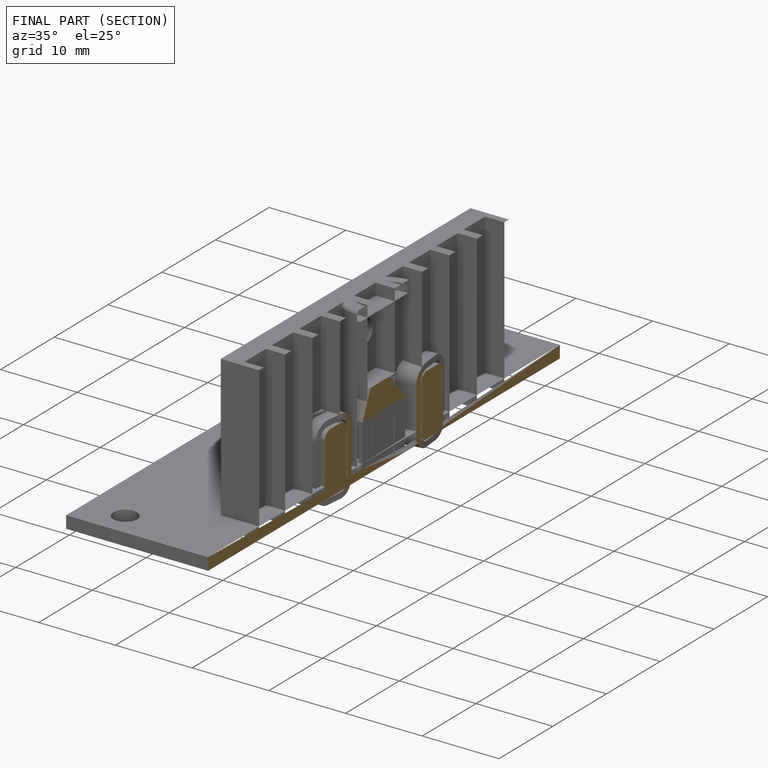
[diagram: finished part — half-section view (interior)]
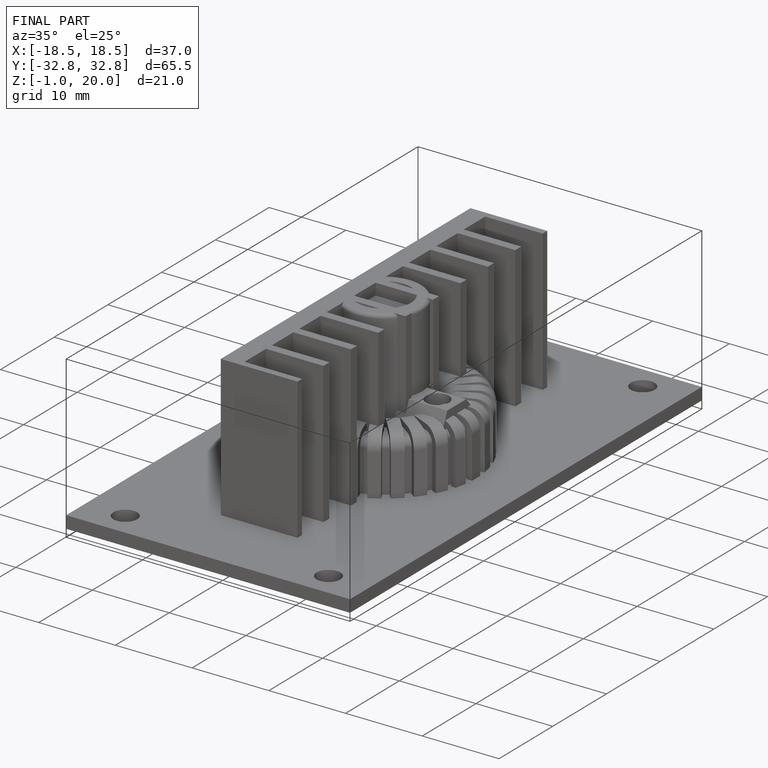
[diagram: finished part — iso view with bounding-box wireframe]
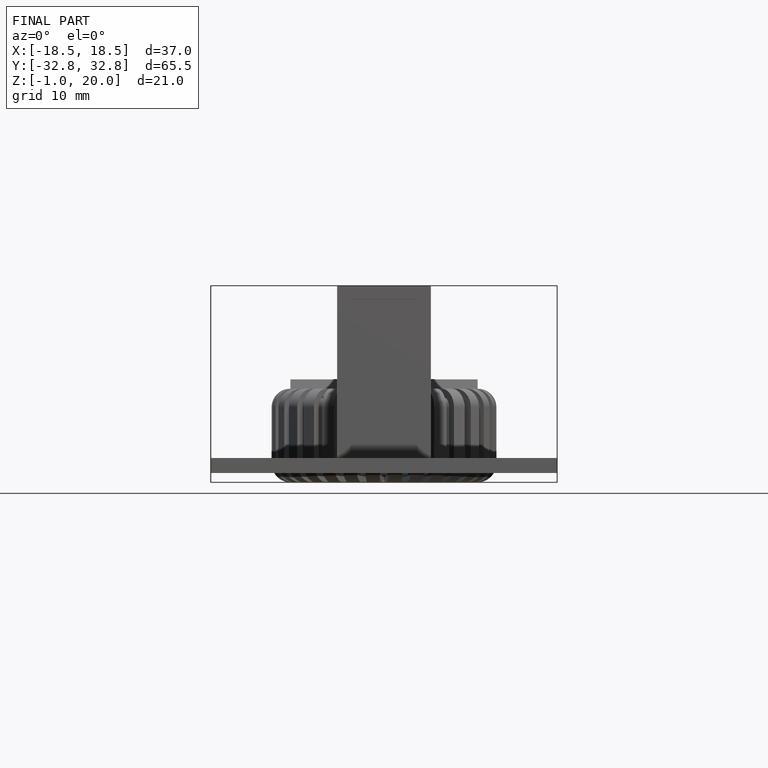
[diagram: finished part — front view with bounding-box wireframe]
